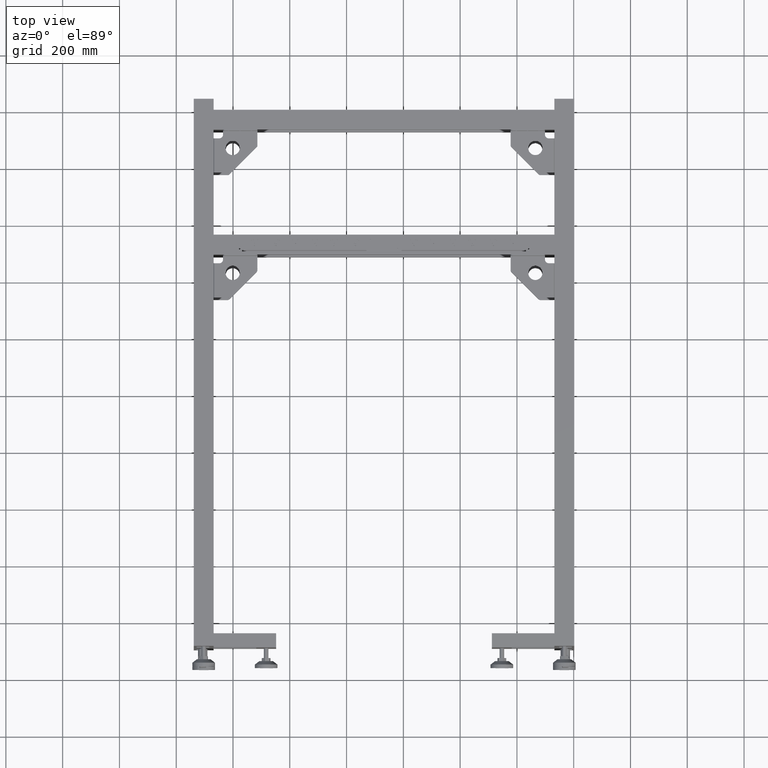
[diagram: clean part render]
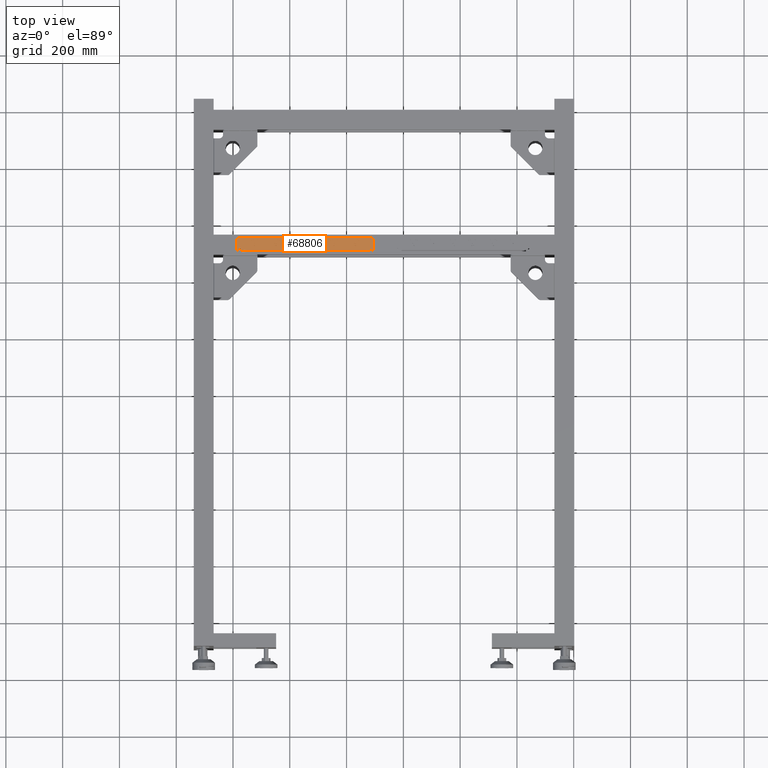
[diagram: same view with one face highlighted and labeled with its STEP entity id]
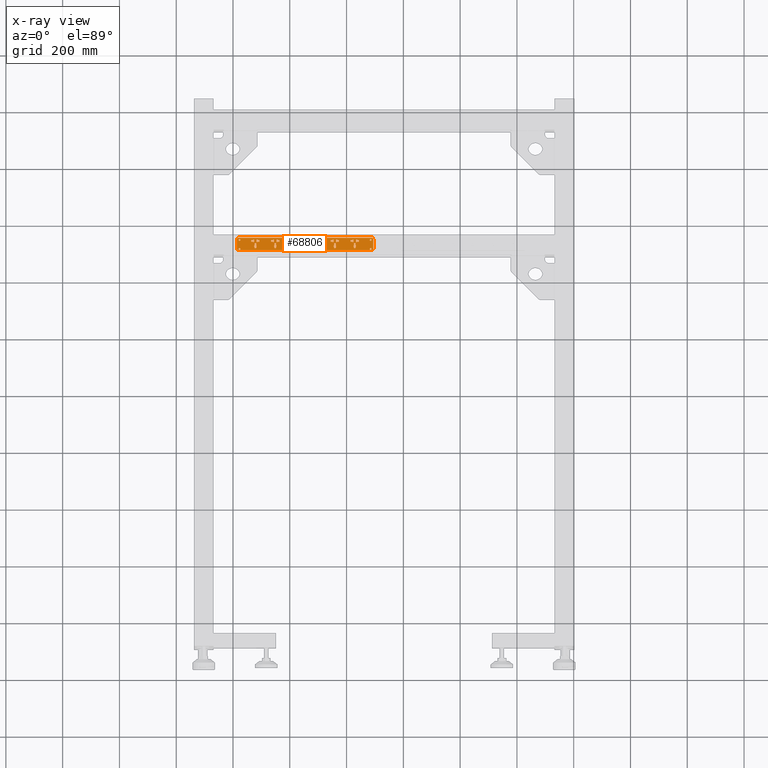
[diagram: x-ray of the same camera — body ghosted, the highlighted face saturated]
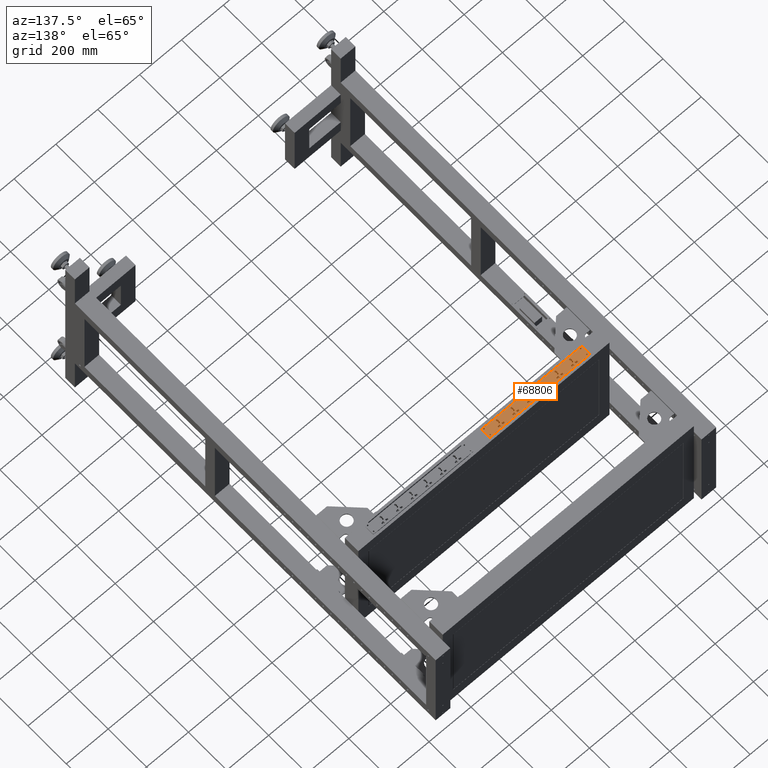
[diagram: same view with one face highlighted and labeled with its STEP entity id]
A machine part, top view. The second image highlights one B-rep face of the part: STEP entity #68806.
The next image is the same camera in x-ray: the body ghosted, the highlighted face saturated — about 0% of this face is hidden behind the body in this view.
A second angle (auxiliary view) of the same face is appended — the face is thin or edge-on in the first view.
In plain terms, the highlighted planar face has unit normal (0, -0, 1).
Its self-contained STEP definition (entity closure, byte-faithful):
#11 = CIRCLE ( 'NONE', #26014, 4.249999999999976019 ) ;
#62 = CARTESIAN_POINT ( 'NONE',  ( -1125.672487437185737, 530.4410804020112664, 302.0000000000000568 ) ) ;
#131 = CARTESIAN_POINT ( 'NONE',  ( -896.6724874371857368, 531.9410804020144496, 302.0000000000000568 ) ) ;
#141 = DIRECTION ( 'NONE',  ( 0.000000000000000000, -2.999999999999999839E-15, 1.000000000000000000 ) ) ;
#142 = VECTOR ( 'NONE', #65904, 1000.000000000000000 ) ;
#173 = CARTESIAN_POINT ( 'NONE',  ( -1119.840004715315672, 520.4767946877257145, 302.0000000000000000 ) ) ;
#194 = VERTEX_POINT ( 'NONE', #19652 ) ;
#201 = DIRECTION ( 'NONE',  ( 0.000000000000000000, 1.000000000000000000, 0.000000000000000000 ) ) ;
#210 = DIRECTION ( 'NONE',  ( -1.000000000000000000, -1.400000000000000030E-14, -4.199999999999999789E-29 ) ) ;
#237 = VERTEX_POINT ( 'NONE', #27335 ) ;
#247 = VERTEX_POINT ( 'NONE', #33442 ) ;
#294 = CARTESIAN_POINT ( 'NONE',  ( -826.6724874371858505, 537.9410804020154728, 302.0000000000000568 ) ) ;
#356 = EDGE_CURVE ( 'NONE', #25703, #29975, #53341, .T. ) ;
#395 = CARTESIAN_POINT ( 'NONE',  ( -903.6724874371858505, 538.1910804020144496, 302.0000000000000568 ) ) ;
#442 = LINE ( 'NONE', #75975, #43717 ) ;
#566 = CARTESIAN_POINT ( 'NONE',  ( -981.1724874371855094, 516.4410804020133128, 302.0000000000000000 ) ) ;
#624 = ORIENTED_EDGE ( 'NONE', *, *, #23537, .T. ) ;
#852 = CARTESIAN_POINT ( 'NONE',  ( -918.6724874371858505, 538.1910804020142223, 302.0000000000000568 ) ) ;
#873 = CARTESIAN_POINT ( 'NONE',  ( -903.6724874371858505, 539.4410804020144496, 302.0000000000000568 ) ) ;
#883 = EDGE_CURVE ( 'NONE', #9637, #47787, #62823, .T. ) ;
#912 = LINE ( 'NONE', #67948, #72941 ) ;
#920 = CIRCLE ( 'NONE', #68368, 3.249999999999975131 ) ;
#1062 = CARTESIAN_POINT ( 'NONE',  ( -908.1724874371855094, 513.4306817573161652, 302.0000000000000000 ) ) ;
#1122 = EDGE_CURVE ( 'NONE', #39479, #33798, #40442, .T. ) ;
#1158 = EDGE_CURVE ( 'NONE', #46308, #49803, #60118, .T. ) ;
#1232 = DIRECTION ( 'NONE',  ( 0.000000000000000000, -2.999999999999999839E-15, 1.000000000000000000 ) ) ;
#1372 = AXIS2_PLACEMENT_3D ( 'NONE', #65953, #4197, #53787 ) ;
#1401 = ORIENTED_EDGE ( 'NONE', *, *, #66503, .F. ) ;
#1411 = CARTESIAN_POINT ( 'NONE',  ( -918.6724874371858505, 539.4410804020142223, 302.0000000000000568 ) ) ;
#1523 = EDGE_CURVE ( 'NONE', #43070, #43889, #66702, .T. ) ;
#1528 = CARTESIAN_POINT ( 'NONE',  ( -1177.172487437185737, 534.9410804020105843, 302.0000000000000568 ) ) ;
#1598 = VERTEX_POINT ( 'NONE', #30964 ) ;
#1604 = DIRECTION ( 'NONE',  ( -1.000000000000000000, -1.400000000000000030E-14, -4.199999999999999789E-29 ) ) ;
#1755 = ORIENTED_EDGE ( 'NONE', *, *, #69590, .F. ) ;
#1773 = ORIENTED_EDGE ( 'NONE', *, *, #9016, .F. ) ;
#1838 = CARTESIAN_POINT ( 'NONE',  ( -766.6724874371857368, 530.4410804020162686, 302.0000000000000568 ) ) ;
#1854 = CARTESIAN_POINT ( 'NONE',  ( -1121.172487437185737, 523.4410804020112664, 302.0000000000000000 ) ) ;
#1906 = DIRECTION ( 'NONE',  ( 1.400000000000000030E-14, -1.000000000000000000, -2.999999999999999839E-15 ) ) ;
#2028 = CARTESIAN_POINT ( 'NONE',  ( -848.6724874371858505, 539.4410804020151318, 302.0000000000000568 ) ) ;
#2117 = CARTESIAN_POINT ( 'NONE',  ( -1058.672487437185737, 531.6910804020122896, 302.0000000000000568 ) ) ;
#2197 = CARTESIAN_POINT ( 'NONE',  ( -988.6724874371857368, 530.4410804020131991, 302.0000000000000568 ) ) ;
#2208 = CIRCLE ( 'NONE', #43672, 3.000000000000002665 ) ;
#2224 = DIRECTION ( 'NONE',  ( 1.400000000000000030E-14, -1.000000000000000000, -2.999999999999999839E-15 ) ) ;
#2228 = CARTESIAN_POINT ( 'NONE',  ( -903.6724874371857368, 531.6910804020144496, 302.0000000000000568 ) ) ;
#2248 = CARTESIAN_POINT ( 'NONE',  ( -1116.672487437185737, 530.4410804020113801, 302.0000000000000568 ) ) ;
#2394 = LINE ( 'NONE', #27180, #2974 ) ;
#2482 = CARTESIAN_POINT ( 'NONE',  ( -903.6724874371857368, 530.4410804020144496, 302.0000000000000568 ) ) ;
#2597 = CARTESIAN_POINT ( 'NONE',  ( -1113.672487437185964, 538.1910804020114938, 302.0000000000000568 ) ) ;
#2606 = VERTEX_POINT ( 'NONE', #41133 ) ;
#2827 = VERTEX_POINT ( 'NONE', #54944 ) ;
#2938 = CARTESIAN_POINT ( 'NONE',  ( -838.1724874371853957, 509.4410804020153023, 302.0000000000000000 ) ) ;
#2974 = VECTOR ( 'NONE', #70638, 1000.000000000000000 ) ;
#3124 = DIRECTION ( 'NONE',  ( 0.000000000000000000, -2.999999999999999839E-15, 1.000000000000000000 ) ) ;
#3125 = CIRCLE ( 'NONE', #78319, 4.249999999999976019 ) ;
#3449 = ORIENTED_EDGE ( 'NONE', *, *, #65476, .F. ) ;
#3545 = DIRECTION ( 'NONE',  ( -1.400000000000000030E-14, 1.000000000000000000, 2.999999999999999839E-15 ) ) ;
#3655 = LINE ( 'NONE', #34129, #17787 ) ;
#3697 = PLANE ( 'NONE',  #38632 ) ;
#3771 = CARTESIAN_POINT ( 'NONE',  ( -966.6724874371858505, 531.9410804020135402, 302.0000000000000568 ) ) ;
#3934 = CARTESIAN_POINT ( 'NONE',  ( -768.1724874371855094, 509.4410804020163255, 302.0000000000000000 ) ) ;
#4016 = EDGE_CURVE ( 'NONE', #13019, #20890, #8511, .T. ) ;
#4071 = VERTEX_POINT ( 'NONE', #35289 ) ;
#4132 = ORIENTED_EDGE ( 'NONE', *, *, #20124, .F. ) ;
#4190 = DIRECTION ( 'NONE',  ( -2.220446049250311188E-14, 1.000000000000000000, 0.000000000000000000 ) ) ;
#4197 = DIRECTION ( 'NONE',  ( 0.000000000000000000, -2.999999999999999839E-15, 1.000000000000000000 ) ) ;
#4226 = FACE_BOUND ( 'NONE', #44540, .T. ) ;
#4239 = EDGE_LOOP ( 'NONE', ( #52630, #68253, #65130, #56740, #5907, #71957, #70146, #15669 ) ) ;
#4259 = ORIENTED_EDGE ( 'NONE', *, *, #39057, .F. ) ;
#4278 = EDGE_CURVE ( 'NONE', #7652, #42165, #6013, .T. ) ;
#4296 = VERTEX_POINT ( 'NONE', #24716 ) ;
#4304 = DIRECTION ( 'NONE',  ( 1.000000000000000000, 1.400000000000000030E-14, 4.199999999999999789E-29 ) ) ;
#4312 = ORIENTED_EDGE ( 'NONE', *, *, #56699, .F. ) ;
#4359 = CARTESIAN_POINT ( 'NONE',  ( -908.1724874371855094, 509.4410804020143928, 302.0000000000000000 ) ) ;
#4617 = FACE_BOUND ( 'NONE', #78031, .T. ) ;
#4657 = ORIENTED_EDGE ( 'NONE', *, *, #22496, .F. ) ;
#4675 = CARTESIAN_POINT ( 'NONE',  ( -1128.672487437185737, 539.4410804020113801, 302.0000000000000568 ) ) ;
#4685 = VECTOR ( 'NONE', #44693, 1000.000000000000000 ) ;
#4796 = ORIENTED_EDGE ( 'NONE', *, *, #77504, .F. ) ;
#4934 = EDGE_CURVE ( 'NONE', #29975, #21200, #5317, .T. ) ;
#5002 = ORIENTED_EDGE ( 'NONE', *, *, #16439, .F. ) ;
#5021 = FACE_BOUND ( 'NONE', #76541, .T. ) ;
#5048 = CARTESIAN_POINT ( 'NONE',  ( -1128.672487437185737, 538.1910804020112664, 302.0000000000000568 ) ) ;
#5094 = CARTESIAN_POINT ( 'NONE',  ( -1036.672487437185737, 531.9410804020126307, 302.0000000000000568 ) ) ;
#5126 = VERTEX_POINT ( 'NONE', #22317 ) ;
#5233 = DIRECTION ( 'NONE',  ( 1.400000000000000030E-14, -1.000000000000000000, -2.999999999999999839E-15 ) ) ;
#5264 = ORIENTED_EDGE ( 'NONE', *, *, #32766, .F. ) ;
#5307 = CARTESIAN_POINT ( 'NONE',  ( -1058.672487437185737, 530.4410804020122896, 302.0000000000000568 ) ) ;
#5317 = LINE ( 'NONE', #60985, #38766 ) ;
#5364 = CARTESIAN_POINT ( 'NONE',  ( -995.6724874371857368, 531.9410804020130854, 302.0000000000000568 ) ) ;
#5389 = VECTOR ( 'NONE', #35226, 1000.000000000000000 ) ;
#5435 = LINE ( 'NONE', #67998, #19859 ) ;
#5440 = DIRECTION ( 'NONE',  ( 1.400000000000000030E-14, -1.000000000000000000, -2.999999999999999839E-15 ) ) ;
#5448 = VERTEX_POINT ( 'NONE', #25139 ) ;
#5555 = VECTOR ( 'NONE', #66885, 1000.000000000000000 ) ;
#5583 = VERTEX_POINT ( 'NONE', #77879 ) ;
#5584 = DIRECTION ( 'NONE',  ( -0.9993628543475501225, 0.03569153051239834507, 1.070745915371950126E-16 ) ) ;
#5616 = CARTESIAN_POINT ( 'NONE',  ( -836.6724874371858505, 530.4410804020154728, 302.0000000000000568 ) ) ;
#5637 = LINE ( 'NONE', #23931, #9469 ) ;
#5655 = EDGE_CURVE ( 'NONE', #72513, #6744, #16530, .T. ) ;
#5742 = VECTOR ( 'NONE', #15789, 1000.000000000000000 ) ;
#5868 = LINE ( 'NONE', #30653, #48058 ) ;
#5907 = ORIENTED_EDGE ( 'NONE', *, *, #40725, .F. ) ;
#5921 = CARTESIAN_POINT ( 'NONE',  ( -984.1724874371855094, 513.4306817573152557, 302.0000000000000000 ) ) ;
#5984 = EDGE_CURVE ( 'NONE', #55860, #48388, #58710, .T. ) ;
#6013 = LINE ( 'NONE', #30807, #59418 ) ;
#6028 = LINE ( 'NONE', #10922, #76012 ) ;
#6100 = LINE ( 'NONE', #43468, #48753 ) ;
#6150 = CARTESIAN_POINT ( 'NONE',  ( -1118.172487437185509, 509.4410804020114369, 302.0000000000000000 ) ) ;
#6217 = DIRECTION ( 'NONE',  ( 1.400000000000000030E-14, -1.000000000000000000, -2.999999999999999839E-15 ) ) ;
#6240 = CARTESIAN_POINT ( 'NONE',  ( -1177.172487437185737, 537.9410804020105843, 302.0000000000000568 ) ) ;
#6258 = EDGE_CURVE ( 'NONE', #23784, #31722, #67111, .T. ) ;
#6297 = LINE ( 'NONE', #37983, #72201 ) ;
#6342 = CARTESIAN_POINT ( 'NONE',  ( -1048.172487437185509, 513.4306817573142325, 302.0000000000000000 ) ) ;
#6522 = ORIENTED_EDGE ( 'NONE', *, *, #21156, .F. ) ;
#6558 = LINE ( 'NONE', #13047, #69093 ) ;
#6610 = EDGE_CURVE ( 'NONE', #12601, #24133, #62914, .T. ) ;
#6613 = ORIENTED_EDGE ( 'NONE', *, *, #28763, .F. ) ;
#6744 = VERTEX_POINT ( 'NONE', #39338 ) ;
#7053 = CARTESIAN_POINT ( 'NONE',  ( -1051.172487437185737, 526.6910804020124033, 302.0000000000000568 ) ) ;
#7081 = DIRECTION ( 'NONE',  ( 1.400000000000000030E-14, -1.000000000000000000, -2.999999999999999839E-15 ) ) ;
#7247 = DIRECTION ( 'NONE',  ( 0.9993628543475501225, -0.03569153051239824792, -1.070745915371947291E-16 ) ) ;
#7276 = EDGE_CURVE ( 'NONE', #41277, #54889, #61105, .T. ) ;
#7301 = VECTOR ( 'NONE', #3545, 1000.000000000000000 ) ;
#7312 = VERTEX_POINT ( 'NONE', #79381 ) ;
#7341 = CARTESIAN_POINT ( 'NONE',  ( -1177.172487437185737, 537.9410804020105843, 302.0000000000000568 ) ) ;
#7391 = EDGE_CURVE ( 'NONE', #54889, #5448, #3125, .T. ) ;
#7452 = ORIENTED_EDGE ( 'NONE', *, *, #21999, .F. ) ;
#7455 = VERTEX_POINT ( 'NONE', #13154 ) ;
#7495 = EDGE_CURVE ( 'NONE', #15922, #74979, #43301, .T. ) ;
#7603 = VERTEX_POINT ( 'NONE', #35778 ) ;
#7652 = VERTEX_POINT ( 'NONE', #62758 ) ;
#7722 = CARTESIAN_POINT ( 'NONE',  ( -988.6724874371857368, 530.4410804020131991, 302.0000000000000568 ) ) ;
#7759 = CARTESIAN_POINT ( 'NONE',  ( -1181.172487437185282, 501.4410804020105275, 301.9999999999999432 ) ) ;
#7860 = DIRECTION ( 'NONE',  ( 0.000000000000000000, 1.000000000000000000, 0.000000000000000000 ) ) ;
#7939 = ORIENTED_EDGE ( 'NONE', *, *, #52970, .F. ) ;
#7965 = VECTOR ( 'NONE', #13830, 1000.000000000000000 ) ;
#8056 = CARTESIAN_POINT ( 'NONE',  ( -908.1724874371855094, 509.4410804020143928, 302.0000000000000000 ) ) ;
#8158 = CARTESIAN_POINT ( 'NONE',  ( -988.6724874371858505, 538.1910804020131991, 302.0000000000000568 ) ) ;
#8290 = VECTOR ( 'NONE', #10357, 1000.000000000000000 ) ;
#8310 = DIRECTION ( 'NONE',  ( 1.400000000000000030E-14, -1.000000000000000000, -2.999999999999999839E-15 ) ) ;
#8497 = VERTEX_POINT ( 'NONE', #50696 ) ;
#8503 = ORIENTED_EDGE ( 'NONE', *, *, #71882, .F. ) ;
#8511 = LINE ( 'NONE', #77557, #34714 ) ;
#8612 = CARTESIAN_POINT ( 'NONE',  ( -763.6724874371858505, 538.1910804020163823, 302.0000000000000568 ) ) ;
#8699 = DIRECTION ( 'NONE',  ( 0.000000000000000000, -1.000000000000000000, 0.000000000000000000 ) ) ;
#8737 = VERTEX_POINT ( 'NONE', #53491 ) ;
#8870 = VECTOR ( 'NONE', #70992, 1000.000000000000000 ) ;
#8915 = AXIS2_PLACEMENT_3D ( 'NONE', #11632, #36410, #22624 ) ;
#9016 = EDGE_CURVE ( 'NONE', #76503, #12601, #33492, .T. ) ;
#9147 = VERTEX_POINT ( 'NONE', #9511 ) ;
#9192 = EDGE_CURVE ( 'NONE', #9780, #63897, #40289, .T. ) ;
#9258 = LINE ( 'NONE', #71791, #53606 ) ;
#9331 = VERTEX_POINT ( 'NONE', #30185 ) ;
#9397 = EDGE_CURVE ( 'NONE', #21707, #72513, #45597, .T. ) ;
#9465 = DIRECTION ( 'NONE',  ( -1.000000000000000000, -1.400000000000000030E-14, -4.199999999999999789E-29 ) ) ;
#9469 = VECTOR ( 'NONE', #5233, 1000.000000000000000 ) ;
#9489 = VERTEX_POINT ( 'NONE', #11003 ) ;
#9505 = DIRECTION ( 'NONE',  ( -2.612289469706265384E-14, 1.000000000000000000, 0.000000000000000000 ) ) ;
#9511 = CARTESIAN_POINT ( 'NONE',  ( -833.6724874371858505, 531.6910804020153591, 302.0000000000000568 ) ) ;
#9571 = ORIENTED_EDGE ( 'NONE', *, *, #53948, .F. ) ;
#9637 = VERTEX_POINT ( 'NONE', #55298 ) ;
#9695 = EDGE_CURVE ( 'NONE', #79201, #42145, #36180, .T. ) ;
#9780 = VERTEX_POINT ( 'NONE', #32108 ) ;
#9897 = DIRECTION ( 'NONE',  ( 0.000000000000000000, -2.999999999999999839E-15, 1.000000000000000000 ) ) ;
#9953 = LINE ( 'NONE', #46948, #45728 ) ;
#9963 = CIRCLE ( 'NONE', #41090, 3.000000000000002665 ) ;
#10083 = VECTOR ( 'NONE', #73868, 1000.000000000000000 ) ;
#10261 = CARTESIAN_POINT ( 'NONE',  ( -715.1724874371858505, 537.9410804020171781, 302.0000000000000568 ) ) ;
#10305 = VERTEX_POINT ( 'NONE', #10719 ) ;
#10357 = DIRECTION ( 'NONE',  ( 0.9993628543475490122, 0.03569153051242672514, 1.070745915372801603E-16 ) ) ;
#10365 = VECTOR ( 'NONE', #1604, 1000.000000000000000 ) ;
#10428 = CARTESIAN_POINT ( 'NONE',  ( -909.8400047153157857, 520.4767946877286704, 302.0000000000000000 ) ) ;
#10455 = ORIENTED_EDGE ( 'NONE', *, *, #77107, .F. ) ;
#10459 = AXIS2_PLACEMENT_3D ( 'NONE', #27329, #65105, #28925 ) ;
#10477 = EDGE_CURVE ( 'NONE', #78680, #66310, #56609, .T. ) ;
#10523 = ORIENTED_EDGE ( 'NONE', *, *, #66045, .F. ) ;
#10719 = CARTESIAN_POINT ( 'NONE',  ( -925.6724874371858505, 537.9410804020141086, 302.0000000000000568 ) ) ;
#10817 = DIRECTION ( 'NONE',  ( 0.000000000000000000, -2.999999999999999839E-15, 1.000000000000000000 ) ) ;
#10878 = CARTESIAN_POINT ( 'NONE',  ( -1113.672487437185964, 539.4410804020116075, 302.0000000000000568 ) ) ;
#10884 = CARTESIAN_POINT ( 'NONE',  ( -778.6724874371857368, 530.4410804020160413, 302.0000000000000568 ) ) ;
#10899 = VERTEX_POINT ( 'NONE', #12628 ) ;
#10922 = CARTESIAN_POINT ( 'NONE',  ( -833.6724874371858505, 531.6910804020153591, 302.0000000000000568 ) ) ;
#10944 = CARTESIAN_POINT ( 'NONE',  ( -848.6724874371858505, 539.4410804020151318, 302.0000000000000568 ) ) ;
#10968 = CIRCLE ( 'NONE', #22680, 5.000000000000004441 ) ;
#11000 = ORIENTED_EDGE ( 'NONE', *, *, #62798, .F. ) ;
#11003 = CARTESIAN_POINT ( 'NONE',  ( -839.8400047153157857, 520.4767946877295799, 302.0000000000000000 ) ) ;
#11023 = VERTEX_POINT ( 'NONE', #76772 ) ;
#11111 = ORIENTED_EDGE ( 'NONE', *, *, #7495, .T. ) ;
#11122 = CARTESIAN_POINT ( 'NONE',  ( -925.6724874371857368, 531.9410804020141086, 302.0000000000000568 ) ) ;
#11165 = ORIENTED_EDGE ( 'NONE', *, *, #55682, .F. ) ;
#11188 = CARTESIAN_POINT ( 'NONE',  ( -1124.172487437185509, 513.4306817573132093, 302.0000000000000000 ) ) ;
#11294 = ORIENTED_EDGE ( 'NONE', *, *, #6610, .F. ) ;
#11453 = CARTESIAN_POINT ( 'NONE',  ( -914.1724874371855094, 513.4306817573161652, 302.0000000000000000 ) ) ;
#11560 = CARTESIAN_POINT ( 'NONE',  ( -1043.672487437185964, 539.4410804020124033, 302.0000000000000568 ) ) ;
#11592 = VERTEX_POINT ( 'NONE', #53273 ) ;
#11632 = CARTESIAN_POINT ( 'NONE',  ( -1051.172487437185509, 516.4410804020122896, 302.0000000000000000 ) ) ;
#11636 = VECTOR ( 'NONE', #45046, 1000.000000000000000 ) ;
#11810 = VERTEX_POINT ( 'NONE', #64030 ) ;
#11898 = CIRCLE ( 'NONE', #15794, 4.249999999999976019 ) ;
#11944 = DIRECTION ( 'NONE',  ( -1.400000000000000030E-14, 1.000000000000000000, 2.999999999999999839E-15 ) ) ;
#12074 = CARTESIAN_POINT ( 'NONE',  ( -1043.672487437185964, 531.6910804020125170, 302.0000000000000568 ) ) ;
#12077 = VECTOR ( 'NONE', #30632, 1000.000000000000000 ) ;
#12084 = CARTESIAN_POINT ( 'NONE',  ( -918.6724874371857368, 530.4410804020142223, 302.0000000000000568 ) ) ;
#12140 = VERTEX_POINT ( 'NONE', #20077 ) ;
#12266 = CARTESIAN_POINT ( 'NONE',  ( -855.6724874371857368, 531.9410804020150181, 302.0000000000000568 ) ) ;
#12292 = DIRECTION ( 'NONE',  ( -1.400000000000000030E-14, 1.000000000000000000, 2.999999999999999839E-15 ) ) ;
#12419 = VECTOR ( 'NONE', #13964, 1000.000000000000000 ) ;
#12427 = CARTESIAN_POINT ( 'NONE',  ( -778.6724874371857368, 530.4410804020160413, 302.0000000000000568 ) ) ;
#12493 = ORIENTED_EDGE ( 'NONE', *, *, #51950, .F. ) ;
#12510 = ORIENTED_EDGE ( 'NONE', *, *, #42044, .F. ) ;
#12601 = VERTEX_POINT ( 'NONE', #57758 ) ;
#12628 = CARTESIAN_POINT ( 'NONE',  ( -826.6724874371858505, 537.9410804020154728, 302.0000000000000568 ) ) ;
#12893 = CARTESIAN_POINT ( 'NONE',  ( -715.1724874371858505, 534.9410804020170644, 302.0000000000000568 ) ) ;
#12931 = CARTESIAN_POINT ( 'NONE',  ( -778.6724874371857368, 531.6910804020161549, 302.0000000000000568 ) ) ;
#13019 = VERTEX_POINT ( 'NONE', #25596 ) ;
#13043 = CARTESIAN_POINT ( 'NONE',  ( -833.6724874371859642, 538.1910804020153591, 302.0000000000000568 ) ) ;
#13045 = CARTESIAN_POINT ( 'NONE',  ( -1128.672487437185737, 530.4410804020112664, 302.0000000000000568 ) ) ;
#13047 = CARTESIAN_POINT ( 'NONE',  ( -1124.172487437185509, 509.4410804020113233, 302.0000000000000000 ) ) ;
#13068 = ORIENTED_EDGE ( 'NONE', *, *, #43127, .F. ) ;
#13124 = EDGE_CURVE ( 'NONE', #48388, #58875, #2394, .T. ) ;
#13141 = ORIENTED_EDGE ( 'NONE', *, *, #15050, .F. ) ;
#13154 = CARTESIAN_POINT ( 'NONE',  ( -1121.172487437185737, 526.6910804020112664, 302.0000000000000568 ) ) ;
#13165 = LINE ( 'NONE', #56650, #40468 ) ;
#13411 = EDGE_CURVE ( 'NONE', #10899, #22210, #25094, .T. ) ;
#13424 = CARTESIAN_POINT ( 'NONE',  ( -774.1724874371856231, 513.4306817573182116, 302.0000000000000000 ) ) ;
#13605 = EDGE_LOOP ( 'NONE', ( #34943, #28005, #73580, #46033, #10455, #28399, #50247 ) ) ;
#13670 = LINE ( 'NONE', #12084, #56540 ) ;
#13776 = CIRCLE ( 'NONE', #21565, 3.249999999999975131 ) ;
#13820 = CARTESIAN_POINT ( 'NONE',  ( -833.6724874371859642, 538.1910804020153591, 302.0000000000000568 ) ) ;
#13830 = DIRECTION ( 'NONE',  ( 1.400000000000000030E-14, -1.000000000000000000, -2.999999999999999839E-15 ) ) ;
#13848 = DIRECTION ( 'NONE',  ( 0.000000000000000000, -2.999999999999999839E-15, 1.000000000000000000 ) ) ;
#13869 = VECTOR ( 'NONE', #53848, 1000.000000000000000 ) ;
#13887 = LINE ( 'NONE', #50902, #50738 ) ;
#13935 = VECTOR ( 'NONE', #75321, 1000.000000000000000 ) ;
#13949 = VECTOR ( 'NONE', #6217, 1000.000000000000000 ) ;
#13964 = DIRECTION ( 'NONE',  ( -1.400000000000000030E-14, 1.000000000000000000, 2.999999999999999839E-15 ) ) ;
#14030 = ORIENTED_EDGE ( 'NONE', *, *, #61749, .T. ) ;
#14059 = AXIS2_PLACEMENT_3D ( 'NONE', #7341, #1232, #19536 ) ;
#14204 = EDGE_LOOP ( 'NONE', ( #24698, #48515 ) ) ;
#14218 = EDGE_CURVE ( 'NONE', #64275, #28431, #33691, .T. ) ;
#14341 = VERTEX_POINT ( 'NONE', #29181 ) ;
#14411 = CIRCLE ( 'NONE', #24811, 3.249999999999975131 ) ;
#14463 = VERTEX_POINT ( 'NONE', #60865 ) ;
#14644 = DIRECTION ( 'NONE',  ( 0.000000000000000000, 1.000000000000000000, 0.000000000000000000 ) ) ;
#14664 = VECTOR ( 'NONE', #69402, 1000.000000000000000 ) ;
#14695 = CARTESIAN_POINT ( 'NONE',  ( -1181.172487437185964, 545.4410804020104706, 302.0000000000001137 ) ) ;
#14756 = DIRECTION ( 'NONE',  ( 0.000000000000000000, -2.999999999999999839E-15, 1.000000000000000000 ) ) ;
#14810 = ORIENTED_EDGE ( 'NONE', *, *, #71281, .F. ) ;
#14992 = LINE ( 'NONE', #75545, #4685 ) ;
#15030 = ORIENTED_EDGE ( 'NONE', *, *, #33870, .F. ) ;
#15050 = EDGE_CURVE ( 'NONE', #46312, #28733, #47261, .T. ) ;
#15252 = EDGE_CURVE ( 'NONE', #62305, #5583, #15292, .T. ) ;
#15292 = LINE ( 'NONE', #39673, #69855 ) ;
#15351 = CARTESIAN_POINT ( 'NONE',  ( -778.6724874371857368, 530.4410804020160413, 302.0000000000000568 ) ) ;
#15409 = CIRCLE ( 'NONE', #8915, 4.249999999999976019 ) ;
#15642 = VERTEX_POINT ( 'NONE', #27373 ) ;
#15669 = ORIENTED_EDGE ( 'NONE', *, *, #74336, .F. ) ;
#15789 = DIRECTION ( 'NONE',  ( 1.400000000000000030E-14, -1.000000000000000000, -2.999999999999999839E-15 ) ) ;
#15794 = AXIS2_PLACEMENT_3D ( 'NONE', #44941, #49848, #25451 ) ;
#15922 = VERTEX_POINT ( 'NONE', #14695 ) ;
#16024 = CARTESIAN_POINT ( 'NONE',  ( -1106.672487437185737, 537.9410804020114938, 302.0000000000000568 ) ) ;
#16112 = CARTESIAN_POINT ( 'NONE',  ( -1058.672487437185737, 530.4410804020122896, 302.0000000000000568 ) ) ;
#16439 = EDGE_CURVE ( 'NONE', #33798, #45655, #36784, .T. ) ;
#16530 = LINE ( 'NONE', #55108, #60687 ) ;
#16536 = DIRECTION ( 'NONE',  ( -0.9993628543475490122, -0.03569153051242682229, -1.070745915372804561E-16 ) ) ;
#16629 = CARTESIAN_POINT ( 'NONE',  ( -772.5049701590555742, 520.4767946877306031, 302.0000000000000000 ) ) ;
#16639 = VERTEX_POINT ( 'NONE', #20101 ) ;
#16712 = LINE ( 'NONE', #60166, #72232 ) ;
#16863 = LINE ( 'NONE', #68737, #47944 ) ;
#16995 = VERTEX_POINT ( 'NONE', #56593 ) ;
#17111 = CARTESIAN_POINT ( 'NONE',  ( -711.1724874371859642, 545.4410804020170644, 302.0000000000001137 ) ) ;
#17190 = CARTESIAN_POINT ( 'NONE',  ( -918.6724874371857368, 531.6910804020142223, 302.0000000000000568 ) ) ;
#17221 = EDGE_CURVE ( 'NONE', #58875, #79201, #39104, .T. ) ;
#17228 = ORIENTED_EDGE ( 'NONE', *, *, #76528, .T. ) ;
#17428 = LINE ( 'NONE', #60898, #23056 ) ;
#17459 = VECTOR ( 'NONE', #76551, 1000.000000000000000 ) ;
#17571 = VERTEX_POINT ( 'NONE', #45908 ) ;
#17607 = ORIENTED_EDGE ( 'NONE', *, *, #1523, .F. ) ;
#17787 = VECTOR ( 'NONE', #27631, 1000.000000000000000 ) ;
#17833 = DIRECTION ( 'NONE',  ( 0.000000000000000000, -2.999999999999999839E-15, 1.000000000000000000 ) ) ;
#17842 = VERTEX_POINT ( 'NONE', #5616 ) ;
#17844 = VERTEX_POINT ( 'NONE', #18217 ) ;
#17866 = CARTESIAN_POINT ( 'NONE',  ( -1118.172487437185509, 513.4306817573133230, 302.0000000000000000 ) ) ;
#17913 = DIRECTION ( 'NONE',  ( 1.400000000000000030E-14, -1.000000000000000000, -2.999999999999999839E-15 ) ) ;
#18102 = DIRECTION ( 'NONE',  ( -1.400000000000000030E-14, 1.000000000000000000, 2.999999999999999839E-15 ) ) ;
#18217 = CARTESIAN_POINT ( 'NONE',  ( -1113.672487437185964, 539.4410804020116075, 302.0000000000000568 ) ) ;
#18301 = CIRCLE ( 'NONE', #66316, 3.000000000000002665 ) ;
#18444 = CARTESIAN_POINT ( 'NONE',  ( -1051.172487437185509, 516.4410804020122896, 302.0000000000000000 ) ) ;
#18454 = DIRECTION ( 'NONE',  ( 0.000000000000000000, -2.999999999999999839E-15, 1.000000000000000000 ) ) ;
#18509 = VECTOR ( 'NONE', #61244, 1000.000000000000000 ) ;
#18579 = EDGE_CURVE ( 'NONE', #22210, #53113, #75583, .T. ) ;
#18734 = DIRECTION ( 'NONE',  ( -1.400000000000000030E-14, 1.000000000000000000, 2.999999999999999839E-15 ) ) ;
#18741 = AXIS2_PLACEMENT_3D ( 'NONE', #23559, #72705, #65035 ) ;
#18824 = EDGE_LOOP ( 'NONE', ( #10523, #32687, #71567, #11294, #1773, #23021, #74966 ) ) ;
#18926 = EDGE_CURVE ( 'NONE', #30716, #41701, #27273, .T. ) ;
#18949 = CARTESIAN_POINT ( 'NONE',  ( -985.6724874371857368, 530.4410804020131991, 302.0000000000000568 ) ) ;
#18952 = CARTESIAN_POINT ( 'NONE',  ( -1135.672487437185964, 537.9410804020111527, 302.0000000000000568 ) ) ;
#18973 = VECTOR ( 'NONE', #69741, 1000.000000000000000 ) ;
#19026 = VECTOR ( 'NONE', #73638, 1000.000000000000000 ) ;
#19097 = DIRECTION ( 'NONE',  ( 1.400000000000000030E-14, -1.000000000000000000, -2.999999999999999839E-15 ) ) ;
#19152 = CARTESIAN_POINT ( 'NONE',  ( -833.6724874371857368, 530.4410804020154728, 302.0000000000000568 ) ) ;
#19153 = DIRECTION ( 'NONE',  ( 0.000000000000000000, -2.999999999999999839E-15, 1.000000000000000000 ) ) ;
#19182 = EDGE_CURVE ( 'NONE', #66310, #46649, #25710, .T. ) ;
#19266 = DIRECTION ( 'NONE',  ( 0.000000000000000000, 1.000000000000000000, 0.000000000000000000 ) ) ;
#19280 = EDGE_CURVE ( 'NONE', #51328, #22323, #13887, .T. ) ;
#19388 = VECTOR ( 'NONE', #47758, 1000.000000000000000 ) ;
#19392 = CARTESIAN_POINT ( 'NONE',  ( -706.1724874371853957, 501.4410804020171781, 301.9999999999999432 ) ) ;
#19470 = VERTEX_POINT ( 'NONE', #65464 ) ;
#19518 = VECTOR ( 'NONE', #78206, 1000.000000000000000 ) ;
#19536 = DIRECTION ( 'NONE',  ( 0.000000000000000000, -1.000000000000000000, 0.000000000000000000 ) ) ;
#19618 = CARTESIAN_POINT ( 'NONE',  ( -706.1724874371858505, 540.4410804020171781, 302.0000000000000568 ) ) ;
#19652 = CARTESIAN_POINT ( 'NONE',  ( -1054.172487437185509, 513.4306817573142325, 302.0000000000000000 ) ) ;
#19859 = VECTOR ( 'NONE', #11944, 1000.000000000000000 ) ;
#19941 = CARTESIAN_POINT ( 'NONE',  ( -1058.672487437185964, 538.1910804020122896, 302.0000000000000568 ) ) ;
#19944 = DIRECTION ( 'NONE',  ( 1.400000000000000030E-14, -1.000000000000000000, -2.999999999999999839E-15 ) ) ;
#20008 = DIRECTION ( 'NONE',  ( -1.400000000000000030E-14, 1.000000000000000000, 2.999999999999999839E-15 ) ) ;
#20077 = CARTESIAN_POINT ( 'NONE',  ( -1124.172487437185509, 509.4410804020113233, 302.0000000000000000 ) ) ;
#20101 = CARTESIAN_POINT ( 'NONE',  ( -1054.172487437185509, 509.4410804020122896, 302.0000000000000000 ) ) ;
#20124 = EDGE_CURVE ( 'NONE', #67288, #55035, #32303, .T. ) ;
#20150 = EDGE_CURVE ( 'NONE', #45769, #21619, #39563, .T. ) ;
#20246 = LINE ( 'NONE', #15351, #75704 ) ;
#20398 = DIRECTION ( 'NONE',  ( -0.9993628543475501225, 0.03569153051239834507, 1.070745915371950126E-16 ) ) ;
#20450 = ORIENTED_EDGE ( 'NONE', *, *, #30048, .F. ) ;
#20457 = LINE ( 'NONE', #50571, #13935 ) ;
#20478 = CARTESIAN_POINT ( 'NONE',  ( -1177.172487437185282, 505.9410804020105843, 301.9999999999999432 ) ) ;
#20605 = ORIENTED_EDGE ( 'NONE', *, *, #75743, .F. ) ;
#20811 = EDGE_LOOP ( 'NONE', ( #24412, #68066, #34160, #46100, #11000, #36333, #43587 ) ) ;
#20832 = VECTOR ( 'NONE', #56134, 1000.000000000000000 ) ;
#20890 = VERTEX_POINT ( 'NONE', #55699 ) ;
#20981 = CARTESIAN_POINT ( 'NONE',  ( -1048.172487437185509, 509.4410804020124033, 302.0000000000000000 ) ) ;
#21140 = DIRECTION ( 'NONE',  ( -2.612289469706265384E-14, 1.000000000000000000, 0.000000000000000000 ) ) ;
#21156 = EDGE_CURVE ( 'NONE', #9147, #51181, #6028, .T. ) ;
#21182 = CARTESIAN_POINT ( 'NONE',  ( -763.6724874371858505, 539.4410804020163823, 302.0000000000000568 ) ) ;
#21200 = VERTEX_POINT ( 'NONE', #73464 ) ;
#21239 = VECTOR ( 'NONE', #65163, 1000.000000000000000 ) ;
#21312 = ORIENTED_EDGE ( 'NONE', *, *, #29928, .F. ) ;
#21345 = VERTEX_POINT ( 'NONE', #1528 ) ;
#21455 = EDGE_CURVE ( 'NONE', #20890, #14463, #70578, .T. ) ;
#21521 = VECTOR ( 'NONE', #23905, 1000.000000000000000 ) ;
#21550 = DIRECTION ( 'NONE',  ( 0.000000000000000000, -2.999999999999999839E-15, 1.000000000000000000 ) ) ;
#21565 = AXIS2_PLACEMENT_3D ( 'NONE', #43667, #55877, #201 ) ;
#21611 = VECTOR ( 'NONE', #70670, 1000.000000000000000 ) ;
#21619 = VERTEX_POINT ( 'NONE', #10428 ) ;
#21707 = VERTEX_POINT ( 'NONE', #61995 ) ;
#21792 = LINE ( 'NONE', #20981, #46070 ) ;
#21833 = ORIENTED_EDGE ( 'NONE', *, *, #28692, .F. ) ;
#21872 = CARTESIAN_POINT ( 'NONE',  ( -1128.672487437185737, 530.4410804020112664, 302.0000000000000568 ) ) ;
#21893 = AXIS2_PLACEMENT_3D ( 'NONE', #50731, #25142, #74290 ) ;
#21996 = ORIENTED_EDGE ( 'NONE', *, *, #18579, .F. ) ;
#21999 = EDGE_CURVE ( 'NONE', #5126, #23784, #42704, .T. ) ;
#22045 = DIRECTION ( 'NONE',  ( 1.400000000000000030E-14, -1.000000000000000000, -2.999999999999999839E-15 ) ) ;
#22103 = VERTEX_POINT ( 'NONE', #43117 ) ;
#22200 = VERTEX_POINT ( 'NONE', #852 ) ;
#22210 = VERTEX_POINT ( 'NONE', #13043 ) ;
#22279 = DIRECTION ( 'NONE',  ( 1.400000000000000030E-14, -1.000000000000000000, -2.999999999999999839E-15 ) ) ;
#22290 = VECTOR ( 'NONE', #22045, 1000.000000000000000 ) ;
#22317 = CARTESIAN_POINT ( 'NONE',  ( -1118.172487437185509, 509.4410804020114369, 302.0000000000000000 ) ) ;
#22323 = VERTEX_POINT ( 'NONE', #65007 ) ;
#22346 = CARTESIAN_POINT ( 'NONE',  ( -911.1724874371856231, 516.4410804020143360, 302.0000000000000000 ) ) ;
#22440 = DIRECTION ( 'NONE',  ( 0.000000000000000000, 1.000000000000000000, 0.000000000000000000 ) ) ;
#22475 = CARTESIAN_POINT ( 'NONE',  ( -838.1724874371853957, 509.4410804020153023, 302.0000000000000000 ) ) ;
#22496 = EDGE_CURVE ( 'NONE', #21200, #24702, #79586, .T. ) ;
#22518 = FACE_BOUND ( 'NONE', #14204, .T. ) ;
#22542 = CARTESIAN_POINT ( 'NONE',  ( -771.1724874371857368, 523.4410804020161549, 302.0000000000000000 ) ) ;
#22554 = LINE ( 'NONE', #47360, #33778 ) ;
#22624 = DIRECTION ( 'NONE',  ( 0.000000000000000000, 1.000000000000000000, 0.000000000000000000 ) ) ;
#22628 = LINE ( 'NONE', #58415, #24977 ) ;
#22680 = AXIS2_PLACEMENT_3D ( 'NONE', #80105, #60612, #53748 ) ;
#22721 = DIRECTION ( 'NONE',  ( -2.612289469706265384E-14, 1.000000000000000000, 0.000000000000000000 ) ) ;
#22806 = CARTESIAN_POINT ( 'NONE',  ( -995.6724874371858505, 537.9410804020130854, 302.0000000000000568 ) ) ;
#22896 = VECTOR ( 'NONE', #68031, 1000.000000000000000 ) ;
#22961 = CIRCLE ( 'NONE', #72251, 3.000000000000002665 ) ;
#22962 = CARTESIAN_POINT ( 'NONE',  ( -966.6724874371858505, 537.9410804020135402, 302.0000000000000568 ) ) ;
#23021 = ORIENTED_EDGE ( 'NONE', *, *, #31177, .F. ) ;
#23022 = EDGE_CURVE ( 'NONE', #74169, #29185, #74808, .T. ) ;
#23056 = VECTOR ( 'NONE', #23527, 1000.000000000000000 ) ;
#23188 = CARTESIAN_POINT ( 'NONE',  ( -1181.172487437185737, 540.4410804020105843, 302.0000000000000568 ) ) ;
#23306 = FACE_BOUND ( 'NONE', #24325, .T. ) ;
#23388 = VECTOR ( 'NONE', #49323, 1000.000000000000000 ) ;
#23407 = EDGE_CURVE ( 'NONE', #47787, #43070, #31763, .T. ) ;
#23513 = DIRECTION ( 'NONE',  ( 0.9993628543475490122, 0.03569153051242672514, 1.070745915372801603E-16 ) ) ;
#23527 = DIRECTION ( 'NONE',  ( 1.400000000000000030E-14, -1.000000000000000000, -2.999999999999999839E-15 ) ) ;
#23537 = EDGE_CURVE ( 'NONE', #66405, #36208, #58043, .T. ) ;
#23559 = CARTESIAN_POINT ( 'NONE',  ( -771.1724874371856231, 516.4410804020162686, 302.0000000000000000 ) ) ;
#23716 = FACE_BOUND ( 'NONE', #34807, .T. ) ;
#23784 = VERTEX_POINT ( 'NONE', #17866 ) ;
#23905 = DIRECTION ( 'NONE',  ( 1.400000000000000030E-14, -1.000000000000000000, -2.999999999999999839E-15 ) ) ;
#23931 = CARTESIAN_POINT ( 'NONE',  ( -984.1724874371853957, 509.4410804020133128, 302.0000000000000000 ) ) ;
#23961 = AXIS2_PLACEMENT_3D ( 'NONE', #66460, #10817, #54294 ) ;
#24000 = DIRECTION ( 'NONE',  ( 0.000000000000000000, 1.000000000000000000, 0.000000000000000000 ) ) ;
#24062 = VECTOR ( 'NONE', #58862, 1000.000000000000000 ) ;
#24133 = VERTEX_POINT ( 'NONE', #4359 ) ;
#24170 = CARTESIAN_POINT ( 'NONE',  ( -1135.672487437185737, 531.9410804020111527, 302.0000000000000568 ) ) ;
#24324 = CARTESIAN_POINT ( 'NONE',  ( -908.1724874371855094, 509.4410804020143928, 302.0000000000000000 ) ) ;
#24325 = EDGE_LOOP ( 'NONE', ( #7939, #9571 ) ) ;
#24375 = DIRECTION ( 'NONE',  ( 1.000000000000000000, 1.400000000000000030E-14, 4.199999999999999789E-29 ) ) ;
#24394 = ORIENTED_EDGE ( 'NONE', *, *, #23022, .F. ) ;
#24412 = ORIENTED_EDGE ( 'NONE', *, *, #71600, .F. ) ;
#24525 = CARTESIAN_POINT ( 'NONE',  ( -1106.672487437185737, 531.9410804020114938, 302.0000000000000568 ) ) ;
#24595 = DIRECTION ( 'NONE',  ( -1.000000000000000000, -1.400000000000000030E-14, -4.199999999999999789E-29 ) ) ;
#24684 = AXIS2_PLACEMENT_3D ( 'NONE', #62113, #57227, #55635 ) ;
#24694 = CARTESIAN_POINT ( 'NONE',  ( -988.6724874371857368, 531.6910804020131991, 302.0000000000000568 ) ) ;
#24698 = ORIENTED_EDGE ( 'NONE', *, *, #43636, .F. ) ;
#24702 = VERTEX_POINT ( 'NONE', #25279 ) ;
#24716 = CARTESIAN_POINT ( 'NONE',  ( -1113.672487437185737, 530.4410804020113801, 302.0000000000000568 ) ) ;
#24778 = CARTESIAN_POINT ( 'NONE',  ( -706.1724874371859642, 545.4410804020170644, 302.0000000000001137 ) ) ;
#24790 = VECTOR ( 'NONE', #20398, 1000.000000000000000 ) ;
#24811 = AXIS2_PLACEMENT_3D ( 'NONE', #25269, #49259, #25667 ) ;
#24821 = VERTEX_POINT ( 'NONE', #69929 ) ;
#24837 = DIRECTION ( 'NONE',  ( -1.400000000000000030E-14, 1.000000000000000000, 2.999999999999999839E-15 ) ) ;
#24903 = EDGE_CURVE ( 'NONE', #14463, #28547, #32997, .T. ) ;
#24977 = VECTOR ( 'NONE', #16536, 1000.000000000000000 ) ;
#25094 = LINE ( 'NONE', #294, #37517 ) ;
#25139 = CARTESIAN_POINT ( 'NONE',  ( -1049.840004715315899, 520.4767946877266240, 302.0000000000000000 ) ) ;
#25142 = DIRECTION ( 'NONE',  ( 0.000000000000000000, -2.999999999999999839E-15, 1.000000000000000000 ) ) ;
#25192 = LINE ( 'NONE', #36969, #30374 ) ;
#25202 = ORIENTED_EDGE ( 'NONE', *, *, #31555, .F. ) ;
#25259 = VECTOR ( 'NONE', #40689, 1000.000000000000000 ) ;
#25269 = CARTESIAN_POINT ( 'NONE',  ( -771.1724874371857368, 523.4410804020161549, 302.0000000000000000 ) ) ;
#25279 = CARTESIAN_POINT ( 'NONE',  ( -973.6724874371857368, 530.4410804020134265, 302.0000000000000568 ) ) ;
#25296 = DIRECTION ( 'NONE',  ( 0.000000000000000000, -1.000000000000000000, 0.000000000000000000 ) ) ;
#25451 = DIRECTION ( 'NONE',  ( 0.000000000000000000, 1.000000000000000000, 0.000000000000000000 ) ) ;
#25484 = VECTOR ( 'NONE', #18102, 1000.000000000000000 ) ;
#25596 = CARTESIAN_POINT ( 'NONE',  ( -774.1724874371855094, 509.4410804020162118, 302.0000000000000000 ) ) ;
#25667 = DIRECTION ( 'NONE',  ( 0.000000000000000000, 1.000000000000000000, 0.000000000000000000 ) ) ;
#25703 = VERTEX_POINT ( 'NONE', #77426 ) ;
#25710 = LINE ( 'NONE', #69956, #24790 ) ;
#25722 = VERTEX_POINT ( 'NONE', #70936 ) ;
#25761 = CARTESIAN_POINT ( 'NONE',  ( -1113.672487437185737, 531.6910804020113801, 302.0000000000000568 ) ) ;
#25972 = EDGE_CURVE ( 'NONE', #24702, #37430, #63934, .T. ) ;
#26014 = AXIS2_PLACEMENT_3D ( 'NONE', #38922, #35516, #59096 ) ;
#26229 = CARTESIAN_POINT ( 'NONE',  ( -706.1724874371853957, 501.4410804020171781, 301.9999999999999432 ) ) ;
#26242 = LINE ( 'NONE', #63991, #45404 ) ;
#26453 = EDGE_CURVE ( 'NONE', #46649, #80335, #37876, .T. ) ;
#26463 = CARTESIAN_POINT ( 'NONE',  ( -711.1724874371853957, 506.4410804020171781, 301.9999999999999432 ) ) ;
#26490 = EDGE_CURVE ( 'NONE', #17844, #70880, #47478, .T. ) ;
#26553 = CARTESIAN_POINT ( 'NONE',  ( -981.1724874371856231, 523.4410804020133128, 302.0000000000000000 ) ) ;
#26734 = VECTOR ( 'NONE', #57559, 1000.000000000000000 ) ;
#26790 = CARTESIAN_POINT ( 'NONE',  ( -1128.672487437185737, 539.4410804020113801, 302.0000000000000568 ) ) ;
#26821 = LINE ( 'NONE', #2028, #75017 ) ;
#26904 = DIRECTION ( 'NONE',  ( 0.9993628543475501225, -0.03569153051239824792, -1.070745915371947291E-16 ) ) ;
#26929 = CARTESIAN_POINT ( 'NONE',  ( -833.6724874371859642, 539.4410804020153591, 302.0000000000000568 ) ) ;
#26963 = VECTOR ( 'NONE', #4304, 1000.000000000000000 ) ;
#27016 = DIRECTION ( 'NONE',  ( -1.400000000000000030E-14, 1.000000000000000000, 2.999999999999999839E-15 ) ) ;
#27063 = ORIENTED_EDGE ( 'NONE', *, *, #31917, .F. ) ;
#27180 = CARTESIAN_POINT ( 'NONE',  ( -1065.672487437185964, 531.9410804020121759, 302.0000000000000568 ) ) ;
#27182 = CARTESIAN_POINT ( 'NONE',  ( -763.6724874371857368, 530.4410804020162686, 302.0000000000000568 ) ) ;
#27233 = ORIENTED_EDGE ( 'NONE', *, *, #78778, .F. ) ;
#27247 = VERTEX_POINT ( 'NONE', #24170 ) ;
#27273 = CIRCLE ( 'NONE', #77906, 4.249999999999976019 ) ;
#27285 = CIRCLE ( 'NONE', #24684, 3.000000000000002665 ) ;
#27329 = CARTESIAN_POINT ( 'NONE',  ( -715.1724874371858505, 537.9410804020171781, 302.0000000000000568 ) ) ;
#27335 = CARTESIAN_POINT ( 'NONE',  ( -1128.672487437185737, 530.4410804020112664, 302.0000000000000568 ) ) ;
#27365 = VERTEX_POINT ( 'NONE', #32176 ) ;
#27373 = CARTESIAN_POINT ( 'NONE',  ( -973.6724874371858505, 538.1910804020133128, 302.0000000000000568 ) ) ;
#27631 = DIRECTION ( 'NONE',  ( -0.9993628543475501225, 0.03569153051239834507, 1.070745915371950126E-16 ) ) ;
#27676 = CARTESIAN_POINT ( 'NONE',  ( -1036.672487437185737, 531.9410804020126307, 302.0000000000000568 ) ) ;
#27832 = ORIENTED_EDGE ( 'NONE', *, *, #63230, .F. ) ;
#28005 = ORIENTED_EDGE ( 'NONE', *, *, #7391, .F. ) ;
#28087 = EDGE_CURVE ( 'NONE', #7455, #68657, #60493, .T. ) ;
#28137 = EDGE_LOOP ( 'NONE', ( #11165, #24394 ) ) ;
#28145 = EDGE_CURVE ( 'NONE', #10305, #68755, #51076, .T. ) ;
#28179 = LINE ( 'NONE', #2197, #46310 ) ;
#28335 = ORIENTED_EDGE ( 'NONE', *, *, #59712, .F. ) ;
#28359 = ORIENTED_EDGE ( 'NONE', *, *, #33525, .F. ) ;
#28399 = ORIENTED_EDGE ( 'NONE', *, *, #69716, .F. ) ;
#28431 = VERTEX_POINT ( 'NONE', #4675 ) ;
#28521 = VECTOR ( 'NONE', #59021, 1000.000000000000000 ) ;
#28539 = ORIENTED_EDGE ( 'NONE', *, *, #59444, .F. ) ;
#28547 = VERTEX_POINT ( 'NONE', #38777 ) ;
#28611 = CARTESIAN_POINT ( 'NONE',  ( -1052.504970159055574, 520.4767946877266240, 302.0000000000000000 ) ) ;
#28692 = EDGE_CURVE ( 'NONE', #11023, #9637, #28179, .T. ) ;
#28733 = VERTEX_POINT ( 'NONE', #77728 ) ;
#28742 = CARTESIAN_POINT ( 'NONE',  ( -1116.672487437185737, 539.4410804020114938, 302.0000000000000568 ) ) ;
#28763 = EDGE_CURVE ( 'NONE', #34413, #58516, #2208, .T. ) ;
#28804 = DIRECTION ( 'NONE',  ( -0.9993628543475490122, -0.03569153051242682229, -1.070745915372804561E-16 ) ) ;
#28925 = DIRECTION ( 'NONE',  ( 0.000000000000000000, 1.000000000000000000, 0.000000000000000000 ) ) ;
#28975 = ORIENTED_EDGE ( 'NONE', *, *, #13411, .F. ) ;
#29008 = FACE_BOUND ( 'NONE', #13605, .T. ) ;
#29053 = EDGE_CURVE ( 'NONE', #9489, #22103, #33427, .T. ) ;
#29152 = VECTOR ( 'NONE', #2224, 1000.000000000000000 ) ;
#29157 = CIRCLE ( 'NONE', #23961, 3.249999999999975131 ) ;
#29181 = CARTESIAN_POINT ( 'NONE',  ( -836.6724874371859642, 539.4410804020153591, 302.0000000000000568 ) ) ;
#29185 = VERTEX_POINT ( 'NONE', #58165 ) ;
#29235 = VECTOR ( 'NONE', #51254, 1000.000000000000000 ) ;
#29325 = CARTESIAN_POINT ( 'NONE',  ( -988.6724874371858505, 538.1910804020131991, 302.0000000000000568 ) ) ;
#29369 = VERTEX_POINT ( 'NONE', #12893 ) ;
#29405 = FACE_BOUND ( 'NONE', #70535, .T. ) ;
#29507 = ORIENTED_EDGE ( 'NONE', *, *, #68087, .F. ) ;
#29778 = DIRECTION ( 'NONE',  ( -1.000000000000000000, -1.400000000000000030E-14, -4.199999999999999789E-29 ) ) ;
#29821 = VECTOR ( 'NONE', #26904, 1000.000000000000000 ) ;
#29836 = EDGE_CURVE ( 'NONE', #53113, #14341, #50998, .T. ) ;
#29928 = EDGE_CURVE ( 'NONE', #71833, #62514, #72039, .T. ) ;
#29951 = VECTOR ( 'NONE', #73602, 1000.000000000000000 ) ;
#29975 = VERTEX_POINT ( 'NONE', #30591 ) ;
#30048 = EDGE_CURVE ( 'NONE', #11810, #40028, #42772, .T. ) ;
#30092 = VERTEX_POINT ( 'NONE', #32601 ) ;
#30104 = VECTOR ( 'NONE', #22279, 1000.000000000000000 ) ;
#30185 = CARTESIAN_POINT ( 'NONE',  ( -903.6724874371857368, 530.4410804020144496, 302.0000000000000568 ) ) ;
#30374 = VECTOR ( 'NONE', #32080, 1000.000000000000000 ) ;
#30466 = LINE ( 'NONE', #30873, #69838 ) ;
#30591 = CARTESIAN_POINT ( 'NONE',  ( -976.6724874371859642, 539.4410804020133128, 302.0000000000000568 ) ) ;
#30623 = LINE ( 'NONE', #78565, #63871 ) ;
#30632 = DIRECTION ( 'NONE',  ( -1.400000000000000030E-14, 1.000000000000000000, 2.999999999999999839E-15 ) ) ;
#30642 = ORIENTED_EDGE ( 'NONE', *, *, #48881, .F. ) ;
#30653 = CARTESIAN_POINT ( 'NONE',  ( -836.6724874371858505, 530.4410804020154728, 302.0000000000000568 ) ) ;
#30716 = VERTEX_POINT ( 'NONE', #73000 ) ;
#30735 = VECTOR ( 'NONE', #47285, 1000.000000000000000 ) ;
#30807 = CARTESIAN_POINT ( 'NONE',  ( -756.6724874371857368, 531.9410804020164960, 302.0000000000000568 ) ) ;
#30827 = LINE ( 'NONE', #12931, #41368 ) ;
#30873 = CARTESIAN_POINT ( 'NONE',  ( -1055.672487437185964, 530.4410804020122896, 302.0000000000000568 ) ) ;
#30898 = ORIENTED_EDGE ( 'NONE', *, *, #54283, .F. ) ;
#30964 = CARTESIAN_POINT ( 'NONE',  ( -982.5049701590554605, 520.4767946877275335, 302.0000000000000000 ) ) ;
#30971 = VERTEX_POINT ( 'NONE', #80096 ) ;
#31177 = EDGE_CURVE ( 'NONE', #63897, #76503, #41130, .T. ) ;
#31193 = ORIENTED_EDGE ( 'NONE', *, *, #37123, .F. ) ;
#31298 = LINE ( 'NONE', #50000, #55243 ) ;
#31555 = EDGE_CURVE ( 'NONE', #28431, #69897, #40836, .T. ) ;
#31590 = CARTESIAN_POINT ( 'NONE',  ( -903.6724874371858505, 539.4410804020144496, 302.0000000000000568 ) ) ;
#31722 = VERTEX_POINT ( 'NONE', #173 ) ;
#31737 = VERTEX_POINT ( 'NONE', #68829 ) ;
#31763 = LINE ( 'NONE', #56549, #41094 ) ;
#31807 = EDGE_CURVE ( 'NONE', #1598, #79243, #74945, .T. ) ;
#31917 = EDGE_CURVE ( 'NONE', #7312, #11810, #20457, .T. ) ;
#31959 = VECTOR ( 'NONE', #27016, 1000.000000000000000 ) ;
#32080 = DIRECTION ( 'NONE',  ( -1.400000000000000030E-14, 1.000000000000000000, 2.999999999999999839E-15 ) ) ;
#32108 = CARTESIAN_POINT ( 'NONE',  ( -911.1724874371857368, 526.6910804020143360, 302.0000000000000568 ) ) ;
#32129 = ORIENTED_EDGE ( 'NONE', *, *, #57438, .F. ) ;
#32176 = CARTESIAN_POINT ( 'NONE',  ( -1135.672487437185964, 537.9410804020111527, 302.0000000000000568 ) ) ;
#32303 = LINE ( 'NONE', #44903, #29152 ) ;
#32558 = ORIENTED_EDGE ( 'NONE', *, *, #50777, .F. ) ;
#32601 = CARTESIAN_POINT ( 'NONE',  ( -988.6724874371857368, 531.6910804020131991, 302.0000000000000568 ) ) ;
#32687 = ORIENTED_EDGE ( 'NONE', *, *, #20150, .F. ) ;
#32766 = EDGE_CURVE ( 'NONE', #12140, #5126, #38167, .T. ) ;
#32817 = CARTESIAN_POINT ( 'NONE',  ( -1051.172487437185737, 523.4410804020124033, 302.0000000000000000 ) ) ;
#32961 = CIRCLE ( 'NONE', #77024, 3.249999999999975131 ) ;
#32997 = CIRCLE ( 'NONE', #18741, 4.249999999999976019 ) ;
#33067 = CARTESIAN_POINT ( 'NONE',  ( -973.6724874371857368, 530.4410804020134265, 302.0000000000000568 ) ) ;
#33269 = LINE ( 'NONE', #70634, #24062 ) ;
#33324 = ORIENTED_EDGE ( 'NONE', *, *, #9695, .F. ) ;
#33427 = CIRCLE ( 'NONE', #54131, 3.249999999999975131 ) ;
#33432 = EDGE_CURVE ( 'NONE', #2606, #8737, #16863, .T. ) ;
#33442 = CARTESIAN_POINT ( 'NONE',  ( -918.6724874371857368, 530.4410804020142223, 302.0000000000000568 ) ) ;
#33492 = LINE ( 'NONE', #58274, #56149 ) ;
#33525 = EDGE_CURVE ( 'NONE', #7603, #15642, #54250, .T. ) ;
#33614 = DIRECTION ( 'NONE',  ( -1.400000000000000030E-14, 1.000000000000000000, 2.999999999999999839E-15 ) ) ;
#33674 = DIRECTION ( 'NONE',  ( -1.400000000000000030E-14, 1.000000000000000000, 2.999999999999999839E-15 ) ) ;
#33691 = LINE ( 'NONE', #26790, #10365 ) ;
#33778 = VECTOR ( 'NONE', #72498, 1000.000000000000000 ) ;
#33798 = VERTEX_POINT ( 'NONE', #27676 ) ;
#33870 = EDGE_CURVE ( 'NONE', #33891, #2827, #30466, .T. ) ;
#33891 = VERTEX_POINT ( 'NONE', #74733 ) ;
#33903 = DIRECTION ( 'NONE',  ( 0.000000000000000000, -2.999999999999999839E-15, 1.000000000000000000 ) ) ;
#33939 = CARTESIAN_POINT ( 'NONE',  ( -1177.172487437185282, 502.9410804020105843, 301.9999999999999432 ) ) ;
#34129 = CARTESIAN_POINT ( 'NONE',  ( -1036.672487437185964, 537.9410804020126307, 302.0000000000000568 ) ) ;
#34160 = ORIENTED_EDGE ( 'NONE', *, *, #78087, .F. ) ;
#34189 = DIRECTION ( 'NONE',  ( 0.000000000000000000, -2.999999999999999839E-15, 1.000000000000000000 ) ) ;
#34294 = ORIENTED_EDGE ( 'NONE', *, *, #50362, .F. ) ;
#34413 = VERTEX_POINT ( 'NONE', #33939 ) ;
#34487 = ORIENTED_EDGE ( 'NONE', *, *, #50221, .F. ) ;
#34497 = DIRECTION ( 'NONE',  ( 1.400000000000000030E-14, -1.000000000000000000, -2.999999999999999839E-15 ) ) ;
#34714 = VECTOR ( 'NONE', #71463, 1000.000000000000000 ) ;
#34717 = FACE_BOUND ( 'NONE', #18824, .T. ) ;
#34736 = DIRECTION ( 'NONE',  ( -0.9993628543475501225, 0.03569153051239834507, 1.070745915371950126E-16 ) ) ;
#34807 = EDGE_LOOP ( 'NONE', ( #54503, #61443, #15030, #35815, #33324, #41273, #52313, #60517 ) ) ;
#34828 = VERTEX_POINT ( 'NONE', #38368 ) ;
#34943 = ORIENTED_EDGE ( 'NONE', *, *, #48660, .F. ) ;
#35021 = VERTEX_POINT ( 'NONE', #59832 ) ;
#35078 = DIRECTION ( 'NONE',  ( 0.000000000000000000, -2.999999999999999839E-15, 1.000000000000000000 ) ) ;
#35112 = FACE_OUTER_BOUND ( 'NONE', #37802, .T. ) ;
#35226 = DIRECTION ( 'NONE',  ( -1.400000000000000030E-14, 1.000000000000000000, 2.999999999999999839E-15 ) ) ;
#35289 = CARTESIAN_POINT ( 'NONE',  ( -1128.672487437185737, 531.6910804020111527, 302.0000000000000568 ) ) ;
#35307 = EDGE_CURVE ( 'NONE', #72159, #9331, #57355, .T. ) ;
#35452 = DIRECTION ( 'NONE',  ( 1.400000000000000030E-14, -1.000000000000000000, -2.999999999999999839E-15 ) ) ;
#35479 = ORIENTED_EDGE ( 'NONE', *, *, #19280, .F. ) ;
#35516 = DIRECTION ( 'NONE',  ( 0.000000000000000000, -2.999999999999999839E-15, 1.000000000000000000 ) ) ;
#35530 = EDGE_CURVE ( 'NONE', #37871, #41663, #67025, .T. ) ;
#35598 = ORIENTED_EDGE ( 'NONE', *, *, #70619, .F. ) ;
#35607 = ORIENTED_EDGE ( 'NONE', *, *, #74926, .F. ) ;
#35615 = CARTESIAN_POINT ( 'NONE',  ( -1113.672487437185737, 531.6910804020113801, 302.0000000000000568 ) ) ;
#35693 = LINE ( 'NONE', #71869, #53989 ) ;
#35723 = LINE ( 'NONE', #67805, #28521 ) ;
#35766 = CARTESIAN_POINT ( 'NONE',  ( -1054.172487437185509, 509.4410804020122896, 302.0000000000000000 ) ) ;
#35778 = CARTESIAN_POINT ( 'NONE',  ( -966.6724874371858505, 537.9410804020135402, 302.0000000000000568 ) ) ;
#35815 = ORIENTED_EDGE ( 'NONE', *, *, #67123, .F. ) ;
#36030 = DIRECTION ( 'NONE',  ( 0.000000000000000000, -2.999999999999999839E-15, 1.000000000000000000 ) ) ;
#36180 = LINE ( 'NONE', #5307, #70143 ) ;
#36189 = EDGE_LOOP ( 'NONE', ( #52221, #4796, #72380, #39247, #58782, #47534, #27832, #73847 ) ) ;
#36208 = VERTEX_POINT ( 'NONE', #71630 ) ;
#36330 = CARTESIAN_POINT ( 'NONE',  ( -918.6724874371857368, 531.6910804020142223, 302.0000000000000568 ) ) ;
#36333 = ORIENTED_EDGE ( 'NONE', *, *, #31807, .F. ) ;
#36410 = DIRECTION ( 'NONE',  ( 0.000000000000000000, -2.999999999999999839E-15, 1.000000000000000000 ) ) ;
#36465 = LINE ( 'NONE', #24694, #18509 ) ;
#36640 = ORIENTED_EDGE ( 'NONE', *, *, #46776, .F. ) ;
#36662 = CIRCLE ( 'NONE', #37965, 3.249999999999975131 ) ;
#36784 = LINE ( 'NONE', #5094, #56992 ) ;
#36969 = CARTESIAN_POINT ( 'NONE',  ( -915.6724874371857368, 530.4410804020143360, 302.0000000000000568 ) ) ;
#36994 = VECTOR ( 'NONE', #46283, 1000.000000000000000 ) ;
#37079 = DIRECTION ( 'NONE',  ( 0.000000000000000000, -2.999999999999999839E-15, 1.000000000000000000 ) ) ;
#37101 = ORIENTED_EDGE ( 'NONE', *, *, #54143, .F. ) ;
#37123 = EDGE_CURVE ( 'NONE', #34828, #54883, #65754, .T. ) ;
#37322 = AXIS2_PLACEMENT_3D ( 'NONE', #566, #18454, #74115 ) ;
#37364 = EDGE_CURVE ( 'NONE', #28733, #30092, #36465, .T. ) ;
#37396 = VERTEX_POINT ( 'NONE', #52286 ) ;
#37430 = VERTEX_POINT ( 'NONE', #62857 ) ;
#37432 = DIRECTION ( 'NONE',  ( -1.400000000000000030E-14, 1.000000000000000000, 2.999999999999999839E-15 ) ) ;
#37439 = EDGE_CURVE ( 'NONE', #63743, #66405, #63653, .T. ) ;
#37517 = VECTOR ( 'NONE', #5584, 1000.000000000000000 ) ;
#37764 = EDGE_CURVE ( 'NONE', #25722, #8497, #912, .T. ) ;
#37802 = EDGE_LOOP ( 'NONE', ( #4259, #11111, #65612, #17228, #42608, #624, #14030, #63418 ) ) ;
#37871 = VERTEX_POINT ( 'NONE', #8612 ) ;
#37876 = LINE ( 'NONE', #69137, #51419 ) ;
#37965 = AXIS2_PLACEMENT_3D ( 'NONE', #32817, #76276, #51126 ) ;
#37983 = CARTESIAN_POINT ( 'NONE',  ( -763.6724874371858505, 539.4410804020163823, 302.0000000000000568 ) ) ;
#38082 = DIRECTION ( 'NONE',  ( 1.400000000000000030E-14, -1.000000000000000000, -2.999999999999999839E-15 ) ) ;
#38167 = LINE ( 'NONE', #38569, #59456 ) ;
#38306 = LINE ( 'NONE', #56200, #13949 ) ;
#38355 = EDGE_CURVE ( 'NONE', #31737, #58200, #47901, .T. ) ;
#38368 = CARTESIAN_POINT ( 'NONE',  ( -778.6724874371857368, 531.6910804020161549, 302.0000000000000568 ) ) ;
#38534 = ORIENTED_EDGE ( 'NONE', *, *, #5655, .F. ) ;
#38569 = CARTESIAN_POINT ( 'NONE',  ( -1118.172487437185509, 509.4410804020114369, 302.0000000000000000 ) ) ;
#38594 = ORIENTED_EDGE ( 'NONE', *, *, #61717, .F. ) ;
#38632 = AXIS2_PLACEMENT_3D ( 'NONE', #46387, #53280, #39877 ) ;
#38726 = VERTEX_POINT ( 'NONE', #12266 ) ;
#38766 = VECTOR ( 'NONE', #48820, 1000.000000000000000 ) ;
#38777 = CARTESIAN_POINT ( 'NONE',  ( -769.8400047153155583, 520.4767946877306031, 302.0000000000000000 ) ) ;
#38794 = EDGE_LOOP ( 'NONE', ( #78257, #51389, #7452, #5264, #28335, #43897, #61795 ) ) ;
#38813 = ORIENTED_EDGE ( 'NONE', *, *, #10477, .F. ) ;
#38833 = ORIENTED_EDGE ( 'NONE', *, *, #1158, .F. ) ;
#38922 = CARTESIAN_POINT ( 'NONE',  ( -841.1724874371855094, 516.4410804020153591, 302.0000000000000000 ) ) ;
#38985 = ORIENTED_EDGE ( 'NONE', *, *, #356, .F. ) ;
#39027 = VECTOR ( 'NONE', #5440, 1000.000000000000000 ) ;
#39057 = EDGE_CURVE ( 'NONE', #15922, #58360, #44266, .T. ) ;
#39104 = LINE ( 'NONE', #2117, #29821 ) ;
#39176 = DIRECTION ( 'NONE',  ( 0.000000000000000000, -2.999999999999999839E-15, 1.000000000000000000 ) ) ;
#39247 = ORIENTED_EDGE ( 'NONE', *, *, #57437, .F. ) ;
#39338 = CARTESIAN_POINT ( 'NONE',  ( -1046.672487437185964, 539.4410804020124033, 302.0000000000000568 ) ) ;
#39479 = VERTEX_POINT ( 'NONE', #12074 ) ;
#39488 = DIRECTION ( 'NONE',  ( 0.000000000000000000, 1.000000000000000000, 0.000000000000000000 ) ) ;
#39545 = EDGE_LOOP ( 'NONE', ( #12510, #37101, #1401, #21312, #14810, #47790, #27233, #35479 ) ) ;
#39563 = CIRCLE ( 'NONE', #49962, 4.249999999999976019 ) ;
#39673 = CARTESIAN_POINT ( 'NONE',  ( -838.1724874371853957, 509.4410804020153023, 302.0000000000000000 ) ) ;
#39877 = DIRECTION ( 'NONE',  ( -1.000000000000000000, -1.400000000000000030E-14, -4.199999999999999789E-29 ) ) ;
#40028 = VERTEX_POINT ( 'NONE', #58558 ) ;
#40289 = CIRCLE ( 'NONE', #1372, 3.249999999999975131 ) ;
#40329 = CARTESIAN_POINT ( 'NONE',  ( -848.6724874371858505, 531.6910804020151318, 302.0000000000000568 ) ) ;
#40341 = EDGE_CURVE ( 'NONE', #35021, #30971, #25192, .T. ) ;
#40396 = EDGE_CURVE ( 'NONE', #4071, #237, #71040, .T. ) ;
#40442 = LINE ( 'NONE', #53840, #8290 ) ;
#40468 = VECTOR ( 'NONE', #62338, 1000.000000000000000 ) ;
#40578 = LINE ( 'NONE', #52380, #36994 ) ;
#40689 = DIRECTION ( 'NONE',  ( -1.000000000000000000, -1.400000000000000030E-14, -4.199999999999999789E-29 ) ) ;
#40725 = EDGE_CURVE ( 'NONE', #64890, #247, #13670, .T. ) ;
#40781 = VECTOR ( 'NONE', #29778, 1000.000000000000000 ) ;
#40836 = LINE ( 'NONE', #5048, #13869 ) ;
#40902 = LINE ( 'NONE', #59580, #41975 ) ;
#40909 = ORIENTED_EDGE ( 'NONE', *, *, #24903, .F. ) ;
#40984 = CARTESIAN_POINT ( 'NONE',  ( -855.6724874371857368, 531.9410804020150181, 302.0000000000000568 ) ) ;
#41090 = AXIS2_PLACEMENT_3D ( 'NONE', #6240, #141, #49731 ) ;
#41094 = VECTOR ( 'NONE', #73199, 1000.000000000000000 ) ;
#41130 = CIRCLE ( 'NONE', #60619, 4.249999999999976019 ) ;
#41133 = CARTESIAN_POINT ( 'NONE',  ( -1046.672487437185737, 530.4410804020124033, 302.0000000000000568 ) ) ;
#41193 = FACE_BOUND ( 'NONE', #36189, .T. ) ;
#41273 = ORIENTED_EDGE ( 'NONE', *, *, #17221, .F. ) ;
#41277 = VERTEX_POINT ( 'NONE', #45273 ) ;
#41355 = CARTESIAN_POINT ( 'NONE',  ( -715.1724874371858505, 540.9410804020171781, 302.0000000000000568 ) ) ;
#41368 = VECTOR ( 'NONE', #7247, 1000.000000000000000 ) ;
#41452 = EDGE_CURVE ( 'NONE', #67942, #58360, #68746, .T. ) ;
#41611 = DIRECTION ( 'NONE',  ( -1.400000000000000030E-14, 1.000000000000000000, 2.999999999999999839E-15 ) ) ;
#41663 = VERTEX_POINT ( 'NONE', #21182 ) ;
#41701 = VERTEX_POINT ( 'NONE', #52090 ) ;
#41968 = CARTESIAN_POINT ( 'NONE',  ( -842.5049701590555742, 520.4767946877295799, 302.0000000000000000 ) ) ;
#41975 = VECTOR ( 'NONE', #33614, 1000.000000000000000 ) ;
#42037 = VECTOR ( 'NONE', #52796, 1000.000000000000000 ) ;
#42044 = EDGE_CURVE ( 'NONE', #70584, #51328, #63665, .T. ) ;
#42070 = EDGE_LOOP ( 'NONE', ( #17607, #47994, #42092, #21833, #76124, #64443, #13141, #38594 ) ) ;
#42092 = ORIENTED_EDGE ( 'NONE', *, *, #883, .F. ) ;
#42097 = CARTESIAN_POINT ( 'NONE',  ( -981.1724874371856231, 526.6910804020133128, 302.0000000000000568 ) ) ;
#42145 = VERTEX_POINT ( 'NONE', #57982 ) ;
#42165 = VERTEX_POINT ( 'NONE', #58789 ) ;
#42219 = VECTOR ( 'NONE', #60255, 1000.000000000000000 ) ;
#42236 = DIRECTION ( 'NONE',  ( -1.400000000000000030E-14, 1.000000000000000000, 2.999999999999999839E-15 ) ) ;
#42237 = DIRECTION ( 'NONE',  ( -1.400000000000000030E-14, 1.000000000000000000, 2.999999999999999839E-15 ) ) ;
#42254 = DIRECTION ( 'NONE',  ( 1.400000000000000030E-14, -1.000000000000000000, -2.999999999999999839E-15 ) ) ;
#42584 = VECTOR ( 'NONE', #71292, 1000.000000000000000 ) ;
#42608 = ORIENTED_EDGE ( 'NONE', *, *, #37439, .T. ) ;
#42704 = LINE ( 'NONE', #6150, #50068 ) ;
#42772 = LINE ( 'NONE', #60659, #40781 ) ;
#43006 = CARTESIAN_POINT ( 'NONE',  ( -1065.672487437185964, 531.9410804020121759, 302.0000000000000568 ) ) ;
#43070 = VERTEX_POINT ( 'NONE', #44626 ) ;
#43117 = CARTESIAN_POINT ( 'NONE',  ( -841.1724874371857368, 526.6910804020152455, 302.0000000000000568 ) ) ;
#43127 = EDGE_CURVE ( 'NONE', #51758, #17571, #11, .T. ) ;
#43162 = CARTESIAN_POINT ( 'NONE',  ( -1177.172487437185282, 505.9410804020105843, 301.9999999999999432 ) ) ;
#43227 = CARTESIAN_POINT ( 'NONE',  ( -715.1724874371853957, 505.9410804020170076, 301.9999999999999432 ) ) ;
#43301 = CIRCLE ( 'NONE', #51158, 5.000000000000004441 ) ;
#43460 = VERTEX_POINT ( 'NONE', #7053 ) ;
#43468 = CARTESIAN_POINT ( 'NONE',  ( -1113.672487437185737, 530.4410804020113801, 302.0000000000000568 ) ) ;
#43578 = EDGE_CURVE ( 'NONE', #38726, #16995, #78086, .T. ) ;
#43587 = ORIENTED_EDGE ( 'NONE', *, *, #75658, .F. ) ;
#43593 = CARTESIAN_POINT ( 'NONE',  ( -785.6724874371857368, 531.9410804020160413, 302.0000000000000568 ) ) ;
#43636 = EDGE_CURVE ( 'NONE', #47022, #29369, #45498, .T. ) ;
#43667 = CARTESIAN_POINT ( 'NONE',  ( -911.1724874371856231, 523.4410804020143360, 302.0000000000000000 ) ) ;
#43672 = AXIS2_PLACEMENT_3D ( 'NONE', #20478, #39176, #8699 ) ;
#43717 = VECTOR ( 'NONE', #18734, 1000.000000000000000 ) ;
#43840 = EDGE_CURVE ( 'NONE', #237, #46814, #44338, .T. ) ;
#43885 = VERTEX_POINT ( 'NONE', #19152 ) ;
#43889 = VERTEX_POINT ( 'NONE', #8158 ) ;
#43894 = EDGE_CURVE ( 'NONE', #46234, #55860, #76381, .T. ) ;
#43897 = ORIENTED_EDGE ( 'NONE', *, *, #44676, .F. ) ;
#44001 = CARTESIAN_POINT ( 'NONE',  ( -896.6724874371857368, 531.9410804020144496, 302.0000000000000568 ) ) ;
#44038 = ORIENTED_EDGE ( 'NONE', *, *, #44561, .F. ) ;
#44144 = DIRECTION ( 'NONE',  ( -1.400000000000000030E-14, 1.000000000000000000, 2.999999999999999839E-15 ) ) ;
#44163 = VECTOR ( 'NONE', #24837, 1000.000000000000000 ) ;
#44180 = CIRCLE ( 'NONE', #49422, 3.249999999999975131 ) ;
#44266 = LINE ( 'NONE', #24778, #48381 ) ;
#44338 = LINE ( 'NONE', #13045, #20832 ) ;
#44540 = EDGE_LOOP ( 'NONE', ( #4657, #52168, #38985, #1755, #28359, #35607, #35598, #73094 ) ) ;
#44561 = EDGE_CURVE ( 'NONE', #51181, #10899, #49049, .T. ) ;
#44581 = CARTESIAN_POINT ( 'NONE',  ( -925.6724874371857368, 531.9410804020141086, 302.0000000000000568 ) ) ;
#44626 = CARTESIAN_POINT ( 'NONE',  ( -988.6724874371858505, 539.4410804020131991, 302.0000000000000568 ) ) ;
#44676 = EDGE_CURVE ( 'NONE', #68657, #65952, #11898, .T. ) ;
#44693 = DIRECTION ( 'NONE',  ( 1.400000000000000030E-14, -1.000000000000000000, -2.999999999999999839E-15 ) ) ;
#44868 = EDGE_CURVE ( 'NONE', #42165, #37871, #9953, .T. ) ;
#44903 = CARTESIAN_POINT ( 'NONE',  ( -766.6724874371857368, 530.4410804020162686, 302.0000000000000568 ) ) ;
#44941 = CARTESIAN_POINT ( 'NONE',  ( -1121.172487437185509, 516.4410804020113801, 302.0000000000000000 ) ) ;
#44984 = LINE ( 'NONE', #69745, #26734 ) ;
#44999 = CARTESIAN_POINT ( 'NONE',  ( -826.6724874371858505, 531.9410804020154728, 302.0000000000000568 ) ) ;
#45045 = DIRECTION ( 'NONE',  ( 1.000000000000000000, 1.400000000000000030E-14, 4.199999999999999789E-29 ) ) ;
#45046 = DIRECTION ( 'NONE',  ( 0.9993628543475490122, 0.03569153051242672514, 1.070745915372801603E-16 ) ) ;
#45273 = CARTESIAN_POINT ( 'NONE',  ( -1048.172487437185509, 509.4410804020124033, 302.0000000000000000 ) ) ;
#45374 = DIRECTION ( 'NONE',  ( 0.000000000000000000, -2.999999999999999839E-15, 1.000000000000000000 ) ) ;
#45404 = VECTOR ( 'NONE', #76180, 1000.000000000000000 ) ;
#45498 = CIRCLE ( 'NONE', #10459, 3.000000000000002665 ) ;
#45515 = CIRCLE ( 'NONE', #72731, 3.249999999999975131 ) ;
#45539 = CARTESIAN_POINT ( 'NONE',  ( -1121.172487437185509, 516.4410804020113801, 302.0000000000000000 ) ) ;
#45597 = LINE ( 'NONE', #70767, #58445 ) ;
#45655 = VERTEX_POINT ( 'NONE', #79892 ) ;
#45728 = VECTOR ( 'NONE', #34736, 1000.000000000000000 ) ;
#45769 = VERTEX_POINT ( 'NONE', #1062 ) ;
#45908 = CARTESIAN_POINT ( 'NONE',  ( -844.1724874371855094, 513.4306817573170747, 302.0000000000000000 ) ) ;
#46033 = ORIENTED_EDGE ( 'NONE', *, *, #47279, .F. ) ;
#46070 = VECTOR ( 'NONE', #70545, 1000.000000000000000 ) ;
#46100 = ORIENTED_EDGE ( 'NONE', *, *, #63105, .F. ) ;
#46234 = VERTEX_POINT ( 'NONE', #52520 ) ;
#46283 = DIRECTION ( 'NONE',  ( 1.400000000000000030E-14, -1.000000000000000000, -2.999999999999999839E-15 ) ) ;
#46308 = VERTEX_POINT ( 'NONE', #48013 ) ;
#46310 = VECTOR ( 'NONE', #59450, 1000.000000000000000 ) ;
#46312 = VERTEX_POINT ( 'NONE', #22806 ) ;
#46383 = DIRECTION ( 'NONE',  ( 1.000000000000000000, 1.400000000000000030E-14, 4.199999999999999789E-29 ) ) ;
#46387 = CARTESIAN_POINT ( 'NONE',  ( -706.1724874371853957, 501.4410804020171781, 301.9999999999999432 ) ) ;
#46577 = AXIS2_PLACEMENT_3D ( 'NONE', #65795, #17833, #22721 ) ;
#46620 = CARTESIAN_POINT ( 'NONE',  ( -1065.672487437185964, 537.9410804020121759, 302.0000000000000568 ) ) ;
#46649 = VERTEX_POINT ( 'NONE', #395 ) ;
#46689 = EDGE_CURVE ( 'NONE', #51461, #22200, #74745, .T. ) ;
#46695 = LINE ( 'NONE', #27182, #42037 ) ;
#46776 = EDGE_CURVE ( 'NONE', #55035, #25722, #46695, .T. ) ;
#46814 = VERTEX_POINT ( 'NONE', #53191 ) ;
#46850 = CARTESIAN_POINT ( 'NONE',  ( -1177.172487437185964, 540.9410804020106980, 302.0000000000000568 ) ) ;
#46914 = CARTESIAN_POINT ( 'NONE',  ( -911.1724874371856231, 516.4410804020143360, 302.0000000000000000 ) ) ;
#46948 = CARTESIAN_POINT ( 'NONE',  ( -756.6724874371858505, 537.9410804020164960, 302.0000000000000568 ) ) ;
#47022 = VERTEX_POINT ( 'NONE', #41355 ) ;
#47261 = LINE ( 'NONE', #5364, #80179 ) ;
#47279 = EDGE_CURVE ( 'NONE', #16639, #41277, #21792, .T. ) ;
#47285 = DIRECTION ( 'NONE',  ( 1.000000000000000000, 1.400000000000000030E-14, 4.199999999999999789E-29 ) ) ;
#47360 = CARTESIAN_POINT ( 'NONE',  ( -1135.672487437185737, 531.9410804020111527, 302.0000000000000568 ) ) ;
#47435 = ORIENTED_EDGE ( 'NONE', *, *, #40396, .F. ) ;
#47478 = LINE ( 'NONE', #10878, #54030 ) ;
#47534 = ORIENTED_EDGE ( 'NONE', *, *, #74831, .F. ) ;
#47720 = DIRECTION ( 'NONE',  ( 1.400000000000000030E-14, -1.000000000000000000, -2.999999999999999839E-15 ) ) ;
#47751 = ORIENTED_EDGE ( 'NONE', *, *, #70506, .F. ) ;
#47758 = DIRECTION ( 'NONE',  ( -0.9993628543475501225, 0.03569153051239834507, 1.070745915371950126E-16 ) ) ;
#47787 = VERTEX_POINT ( 'NONE', #66345 ) ;
#47790 = ORIENTED_EDGE ( 'NONE', *, *, #43578, .F. ) ;
#47793 = VECTOR ( 'NONE', #9465, 1000.000000000000000 ) ;
#47801 = EDGE_CURVE ( 'NONE', #68755, #64890, #48087, .T. ) ;
#47901 = LINE ( 'NONE', #65371, #54940 ) ;
#47920 = LINE ( 'NONE', #73064, #74204 ) ;
#47944 = VECTOR ( 'NONE', #60330, 1000.000000000000000 ) ;
#47994 = ORIENTED_EDGE ( 'NONE', *, *, #23407, .F. ) ;
#48013 = CARTESIAN_POINT ( 'NONE',  ( -771.1724874371857368, 526.6910804020162686, 302.0000000000000568 ) ) ;
#48058 = VECTOR ( 'NONE', #7081, 1000.000000000000000 ) ;
#48087 = LINE ( 'NONE', #17190, #42219 ) ;
#48115 = FACE_BOUND ( 'NONE', #66463, .T. ) ;
#48215 = DIRECTION ( 'NONE',  ( -1.000000000000000000, -1.400000000000000030E-14, -4.199999999999999789E-29 ) ) ;
#48230 = EDGE_CURVE ( 'NONE', #2827, #46234, #78841, .T. ) ;
#48341 = VECTOR ( 'NONE', #51489, 1000.000000000000000 ) ;
#48381 = VECTOR ( 'NONE', #24375, 1000.000000000000000 ) ;
#48388 = VERTEX_POINT ( 'NONE', #46620 ) ;
#48441 = VECTOR ( 'NONE', #44144, 1000.000000000000000 ) ;
#48515 = ORIENTED_EDGE ( 'NONE', *, *, #71773, .F. ) ;
#48522 = FACE_BOUND ( 'NONE', #42070, .T. ) ;
#48542 = CARTESIAN_POINT ( 'NONE',  ( -848.6724874371857368, 530.4410804020152455, 302.0000000000000568 ) ) ;
#48647 = DIRECTION ( 'NONE',  ( 0.000000000000000000, 1.000000000000000000, 0.000000000000000000 ) ) ;
#48660 = EDGE_CURVE ( 'NONE', #5448, #43460, #29157, .T. ) ;
#48753 = VECTOR ( 'NONE', #56485, 1000.000000000000000 ) ;
#48791 = DIRECTION ( 'NONE',  ( 1.400000000000000030E-14, -1.000000000000000000, -2.999999999999999839E-15 ) ) ;
#48820 = DIRECTION ( 'NONE',  ( 1.400000000000000030E-14, -1.000000000000000000, -2.999999999999999839E-15 ) ) ;
#48881 = EDGE_CURVE ( 'NONE', #24821, #78680, #57892, .T. ) ;
#49049 = LINE ( 'NONE', #60002, #5389 ) ;
#49129 = VERTEX_POINT ( 'NONE', #24525 ) ;
#49259 = DIRECTION ( 'NONE',  ( 0.000000000000000000, -2.999999999999999839E-15, 1.000000000000000000 ) ) ;
#49323 = DIRECTION ( 'NONE',  ( -1.400000000000000030E-14, 1.000000000000000000, 2.999999999999999839E-15 ) ) ;
#49422 = AXIS2_PLACEMENT_3D ( 'NONE', #26553, #14756, #7860 ) ;
#49731 = DIRECTION ( 'NONE',  ( 0.000000000000000000, -1.000000000000000000, 0.000000000000000000 ) ) ;
#49783 = LINE ( 'NONE', #62756, #22896 ) ;
#49803 = VERTEX_POINT ( 'NONE', #16629 ) ;
#49848 = DIRECTION ( 'NONE',  ( 0.000000000000000000, -2.999999999999999839E-15, 1.000000000000000000 ) ) ;
#49962 = AXIS2_PLACEMENT_3D ( 'NONE', #46914, #33903, #77754 ) ;
#49972 = DIRECTION ( 'NONE',  ( 1.000000000000000000, 1.400000000000000030E-14, 4.199999999999999789E-29 ) ) ;
#50000 = CARTESIAN_POINT ( 'NONE',  ( -778.6724874371858505, 538.1910804020162686, 302.0000000000000568 ) ) ;
#50068 = VECTOR ( 'NONE', #37432, 1000.000000000000000 ) ;
#50175 = AXIS2_PLACEMENT_3D ( 'NONE', #43227, #61110, #19266 ) ;
#50221 = EDGE_CURVE ( 'NONE', #19470, #31737, #49783, .T. ) ;
#50247 = ORIENTED_EDGE ( 'NONE', *, *, #74218, .F. ) ;
#50317 = ORIENTED_EDGE ( 'NONE', *, *, #62624, .F. ) ;
#50320 = DIRECTION ( 'NONE',  ( -1.400000000000000030E-14, 1.000000000000000000, 2.999999999999999839E-15 ) ) ;
#50362 = EDGE_CURVE ( 'NONE', #41663, #67288, #6297, .T. ) ;
#50482 = VERTEX_POINT ( 'NONE', #2597 ) ;
#50547 = VERTEX_POINT ( 'NONE', #72028 ) ;
#50571 = CARTESIAN_POINT ( 'NONE',  ( -775.6724874371857368, 530.4410804020161549, 302.0000000000000568 ) ) ;
#50696 = CARTESIAN_POINT ( 'NONE',  ( -763.6724874371857368, 531.6910804020162686, 302.0000000000000568 ) ) ;
#50731 = CARTESIAN_POINT ( 'NONE',  ( -771.1724874371856231, 516.4410804020162686, 302.0000000000000000 ) ) ;
#50738 = VECTOR ( 'NONE', #75655, 1000.000000000000000 ) ;
#50767 = ORIENTED_EDGE ( 'NONE', *, *, #43840, .F. ) ;
#50777 = EDGE_CURVE ( 'NONE', #58516, #34413, #22961, .T. ) ;
#50864 = DIRECTION ( 'NONE',  ( -2.220446049250311188E-14, 1.000000000000000000, 0.000000000000000000 ) ) ;
#50902 = CARTESIAN_POINT ( 'NONE',  ( -855.6724874371858505, 537.9410804020150181, 302.0000000000000568 ) ) ;
#50998 = LINE ( 'NONE', #56296, #64035 ) ;
#51076 = LINE ( 'NONE', #44581, #18973 ) ;
#51126 = DIRECTION ( 'NONE',  ( 0.000000000000000000, 1.000000000000000000, 0.000000000000000000 ) ) ;
#51142 = CARTESIAN_POINT ( 'NONE',  ( -973.6724874371858505, 531.6910804020134265, 302.0000000000000568 ) ) ;
#51158 = AXIS2_PLACEMENT_3D ( 'NONE', #23188, #54882, #24000 ) ;
#51181 = VERTEX_POINT ( 'NONE', #44999 ) ;
#51254 = DIRECTION ( 'NONE',  ( -1.000000000000000000, -1.400000000000000030E-14, -4.199999999999999789E-29 ) ) ;
#51328 = VERTEX_POINT ( 'NONE', #66055 ) ;
#51389 = ORIENTED_EDGE ( 'NONE', *, *, #6258, .F. ) ;
#51419 = VECTOR ( 'NONE', #33674, 1000.000000000000000 ) ;
#51461 = VERTEX_POINT ( 'NONE', #1411 ) ;
#51489 = DIRECTION ( 'NONE',  ( 1.000000000000000000, 1.400000000000000030E-14, 4.199999999999999789E-29 ) ) ;
#51504 = DIRECTION ( 'NONE',  ( 0.000000000000000000, 1.000000000000000000, 0.000000000000000000 ) ) ;
#51738 = CIRCLE ( 'NONE', #46577, 4.249999999999976019 ) ;
#51758 = VERTEX_POINT ( 'NONE', #41968 ) ;
#51846 = DIRECTION ( 'NONE',  ( 0.000000000000000000, 1.000000000000000000, 0.000000000000000000 ) ) ;
#51950 = EDGE_CURVE ( 'NONE', #6744, #2606, #38306, .T. ) ;
#52090 = CARTESIAN_POINT ( 'NONE',  ( -979.8400047153158994, 520.4767946877275335, 302.0000000000000000 ) ) ;
#52168 = ORIENTED_EDGE ( 'NONE', *, *, #4934, .F. ) ;
#52221 = ORIENTED_EDGE ( 'NONE', *, *, #65819, .F. ) ;
#52286 = CARTESIAN_POINT ( 'NONE',  ( -844.1724874371853957, 509.4410804020153023, 302.0000000000000000 ) ) ;
#52313 = ORIENTED_EDGE ( 'NONE', *, *, #13124, .F. ) ;
#52380 = CARTESIAN_POINT ( 'NONE',  ( -844.1724874371853957, 509.4410804020153023, 302.0000000000000000 ) ) ;
#52411 = EDGE_CURVE ( 'NONE', #30092, #11023, #63382, .T. ) ;
#52520 = CARTESIAN_POINT ( 'NONE',  ( -1058.672487437185964, 539.4410804020121759, 302.0000000000000568 ) ) ;
#52625 = CARTESIAN_POINT ( 'NONE',  ( -1122.504970159055802, 520.4767946877256009, 302.0000000000000000 ) ) ;
#52630 = ORIENTED_EDGE ( 'NONE', *, *, #46689, .F. ) ;
#52676 = VECTOR ( 'NONE', #61698, 1000.000000000000000 ) ;
#52796 = DIRECTION ( 'NONE',  ( 1.000000000000000000, 1.400000000000000030E-14, 4.199999999999999789E-29 ) ) ;
#52838 = DIRECTION ( 'NONE',  ( -1.000000000000000000, -1.400000000000000030E-14, -4.199999999999999789E-29 ) ) ;
#52914 = CARTESIAN_POINT ( 'NONE',  ( -1058.672487437185964, 539.4410804020121759, 302.0000000000000568 ) ) ;
#52970 = EDGE_CURVE ( 'NONE', #59388, #21345, #9963, .T. ) ;
#53113 = VERTEX_POINT ( 'NONE', #26929 ) ;
#53191 = CARTESIAN_POINT ( 'NONE',  ( -1125.672487437185737, 530.4410804020112664, 302.0000000000000568 ) ) ;
#53273 = CARTESIAN_POINT ( 'NONE',  ( -845.6724874371859642, 539.4410804020152455, 302.0000000000000568 ) ) ;
#53280 = DIRECTION ( 'NONE',  ( 0.000000000000000000, -2.999999999999999839E-15, 1.000000000000000000 ) ) ;
#53341 = LINE ( 'NONE', #60204, #47793 ) ;
#53350 = DIRECTION ( 'NONE',  ( 0.000000000000000000, -2.999999999999999839E-15, 1.000000000000000000 ) ) ;
#53387 = CARTESIAN_POINT ( 'NONE',  ( -896.6724874371858505, 537.9410804020144496, 302.0000000000000568 ) ) ;
#53429 = FACE_BOUND ( 'NONE', #74734, .T. ) ;
#53461 = CARTESIAN_POINT ( 'NONE',  ( -1113.672487437185964, 538.1910804020114938, 302.0000000000000568 ) ) ;
#53491 = CARTESIAN_POINT ( 'NONE',  ( -1043.672487437185964, 530.4410804020124033, 302.0000000000000568 ) ) ;
#53492 = ORIENTED_EDGE ( 'NONE', *, *, #66343, .F. ) ;
#53569 = EDGE_CURVE ( 'NONE', #80274, #13019, #17428, .T. ) ;
#53606 = VECTOR ( 'NONE', #64903, 1000.000000000000000 ) ;
#53748 = DIRECTION ( 'NONE',  ( 0.000000000000000000, 1.000000000000000000, 0.000000000000000000 ) ) ;
#53787 = DIRECTION ( 'NONE',  ( 0.000000000000000000, 1.000000000000000000, 0.000000000000000000 ) ) ;
#53840 = CARTESIAN_POINT ( 'NONE',  ( -1043.672487437185964, 531.6910804020125170, 302.0000000000000568 ) ) ;
#53848 = DIRECTION ( 'NONE',  ( 1.400000000000000030E-14, -1.000000000000000000, -2.999999999999999839E-15 ) ) ;
#53907 = VECTOR ( 'NONE', #62634, 1000.000000000000000 ) ;
#53948 = EDGE_CURVE ( 'NONE', #21345, #59388, #58151, .T. ) ;
#53989 = VECTOR ( 'NONE', #28804, 1000.000000000000000 ) ;
#54030 = VECTOR ( 'NONE', #72620, 1000.000000000000000 ) ;
#54074 = ORIENTED_EDGE ( 'NONE', *, *, #67053, .F. ) ;
#54125 = DIRECTION ( 'NONE',  ( 0.9993628543475501225, -0.03569153051239824792, -1.070745915371947291E-16 ) ) ;
#54131 = AXIS2_PLACEMENT_3D ( 'NONE', #63852, #34189, #39488 ) ;
#54143 = EDGE_CURVE ( 'NONE', #11592, #70584, #26821, .T. ) ;
#54169 = CARTESIAN_POINT ( 'NONE',  ( -711.1724874371853957, 501.4410804020170644, 301.9999999999999432 ) ) ;
#54206 = FACE_BOUND ( 'NONE', #67930, .T. ) ;
#54230 = DIRECTION ( 'NONE',  ( 0.000000000000000000, -2.999999999999999839E-15, 1.000000000000000000 ) ) ;
#54250 = LINE ( 'NONE', #22962, #19388 ) ;
#54283 = EDGE_CURVE ( 'NONE', #5583, #9489, #51738, .T. ) ;
#54294 = DIRECTION ( 'NONE',  ( 0.000000000000000000, 1.000000000000000000, 0.000000000000000000 ) ) ;
#54324 = AXIS2_PLACEMENT_3D ( 'NONE', #45539, #19153, #14644 ) ;
#54333 = DIRECTION ( 'NONE',  ( -0.9993628543475490122, -0.03569153051242682229, -1.070745915372804561E-16 ) ) ;
#54392 = LINE ( 'NONE', #40984, #21521 ) ;
#54404 = EDGE_CURVE ( 'NONE', #49803, #80274, #80299, .T. ) ;
#54503 = ORIENTED_EDGE ( 'NONE', *, *, #43894, .F. ) ;
#54525 = EDGE_CURVE ( 'NONE', #58200, #34828, #30827, .T. ) ;
#54882 = DIRECTION ( 'NONE',  ( 0.000000000000000000, -2.999999999999999839E-15, 1.000000000000000000 ) ) ;
#54883 = VERTEX_POINT ( 'NONE', #12427 ) ;
#54889 = VERTEX_POINT ( 'NONE', #6342 ) ;
#54940 = VECTOR ( 'NONE', #34497, 1000.000000000000000 ) ;
#54944 = CARTESIAN_POINT ( 'NONE',  ( -1055.672487437185964, 539.4410804020121759, 302.0000000000000568 ) ) ;
#55035 = VERTEX_POINT ( 'NONE', #1838 ) ;
#55039 = EDGE_CURVE ( 'NONE', #61972, #50482, #26242, .T. ) ;
#55108 = CARTESIAN_POINT ( 'NONE',  ( -1043.672487437185964, 539.4410804020124033, 302.0000000000000568 ) ) ;
#55243 = VECTOR ( 'NONE', #48791, 1000.000000000000000 ) ;
#55298 = CARTESIAN_POINT ( 'NONE',  ( -985.6724874371857368, 530.4410804020131991, 302.0000000000000568 ) ) ;
#55354 = AXIS2_PLACEMENT_3D ( 'NONE', #75434, #45374, #70141 ) ;
#55635 = DIRECTION ( 'NONE',  ( 0.000000000000000000, 1.000000000000000000, 0.000000000000000000 ) ) ;
#55682 = EDGE_CURVE ( 'NONE', #29185, #74169, #27285, .T. ) ;
#55699 = CARTESIAN_POINT ( 'NONE',  ( -768.1724874371855094, 509.4410804020163255, 302.0000000000000000 ) ) ;
#55860 = VERTEX_POINT ( 'NONE', #75894 ) ;
#55877 = DIRECTION ( 'NONE',  ( 0.000000000000000000, -2.999999999999999839E-15, 1.000000000000000000 ) ) ;
#55894 = VECTOR ( 'NONE', #1906, 1000.000000000000000 ) ;
#55941 = LINE ( 'NONE', #18952, #68026 ) ;
#56134 = DIRECTION ( 'NONE',  ( 1.000000000000000000, 1.400000000000000030E-14, 4.199999999999999789E-29 ) ) ;
#56140 = EDGE_CURVE ( 'NONE', #31722, #7455, #45515, .T. ) ;
#56148 = LINE ( 'NONE', #873, #29235 ) ;
#56149 = VECTOR ( 'NONE', #8310, 1000.000000000000000 ) ;
#56200 = CARTESIAN_POINT ( 'NONE',  ( -1046.672487437185737, 530.4410804020124033, 302.0000000000000568 ) ) ;
#56260 = VERTEX_POINT ( 'NONE', #78586 ) ;
#56296 = CARTESIAN_POINT ( 'NONE',  ( -833.6724874371859642, 539.4410804020153591, 302.0000000000000568 ) ) ;
#56485 = DIRECTION ( 'NONE',  ( -1.400000000000000030E-14, 1.000000000000000000, 2.999999999999999839E-15 ) ) ;
#56540 = VECTOR ( 'NONE', #38082, 1000.000000000000000 ) ;
#56549 = CARTESIAN_POINT ( 'NONE',  ( -988.6724874371858505, 539.4410804020131991, 302.0000000000000568 ) ) ;
#56551 = CARTESIAN_POINT ( 'NONE',  ( -833.6724874371857368, 530.4410804020154728, 302.0000000000000568 ) ) ;
#56593 = CARTESIAN_POINT ( 'NONE',  ( -848.6724874371858505, 531.6910804020151318, 302.0000000000000568 ) ) ;
#56609 = LINE ( 'NONE', #131, #23388 ) ;
#56650 = CARTESIAN_POINT ( 'NONE',  ( -918.6724874371857368, 530.4410804020142223, 302.0000000000000568 ) ) ;
#56699 = EDGE_CURVE ( 'NONE', #46814, #64275, #68320, .T. ) ;
#56740 = ORIENTED_EDGE ( 'NONE', *, *, #72695, .F. ) ;
#56992 = VECTOR ( 'NONE', #74161, 1000.000000000000000 ) ;
#57086 = VECTOR ( 'NONE', #42236, 1000.000000000000000 ) ;
#57227 = DIRECTION ( 'NONE',  ( 0.000000000000000000, -2.999999999999999839E-15, 1.000000000000000000 ) ) ;
#57355 = LINE ( 'NONE', #2482, #62310 ) ;
#57437 = EDGE_CURVE ( 'NONE', #50482, #17844, #61122, .T. ) ;
#57438 = EDGE_CURVE ( 'NONE', #27365, #27247, #22554, .T. ) ;
#57511 = EDGE_CURVE ( 'NONE', #14341, #17842, #5868, .T. ) ;
#57559 = DIRECTION ( 'NONE',  ( 1.000000000000000000, 1.400000000000000030E-14, 4.199999999999999789E-29 ) ) ;
#57577 = CARTESIAN_POINT ( 'NONE',  ( -848.6724874371858505, 538.1910804020151318, 302.0000000000000568 ) ) ;
#57758 = CARTESIAN_POINT ( 'NONE',  ( -914.1724874371855094, 509.4410804020141654, 302.0000000000000000 ) ) ;
#57892 = LINE ( 'NONE', #2228, #17459 ) ;
#57982 = CARTESIAN_POINT ( 'NONE',  ( -1058.672487437185737, 530.4410804020122896, 302.0000000000000568 ) ) ;
#57984 = LINE ( 'NONE', #16112, #26963 ) ;
#58043 = CIRCLE ( 'NONE', #78789, 5.000000000000004441 ) ;
#58064 = ORIENTED_EDGE ( 'NONE', *, *, #26453, .F. ) ;
#58151 = CIRCLE ( 'NONE', #14059, 3.000000000000002665 ) ;
#58165 = CARTESIAN_POINT ( 'NONE',  ( -715.1724874371853957, 508.9410804020171213, 302.0000000000000000 ) ) ;
#58200 = VERTEX_POINT ( 'NONE', #43593 ) ;
#58274 = CARTESIAN_POINT ( 'NONE',  ( -914.1724874371855094, 509.4410804020141654, 302.0000000000000000 ) ) ;
#58360 = VERTEX_POINT ( 'NONE', #17111 ) ;
#58415 = CARTESIAN_POINT ( 'NONE',  ( -925.6724874371858505, 537.9410804020141086, 302.0000000000000568 ) ) ;
#58445 = VECTOR ( 'NONE', #20008, 1000.000000000000000 ) ;
#58516 = VERTEX_POINT ( 'NONE', #62987 ) ;
#58527 = CARTESIAN_POINT ( 'NONE',  ( -912.5049701590555742, 520.4767946877286704, 302.0000000000000000 ) ) ;
#58558 = CARTESIAN_POINT ( 'NONE',  ( -778.6724874371858505, 539.4410804020162686, 302.0000000000000568 ) ) ;
#58574 = ORIENTED_EDGE ( 'NONE', *, *, #21455, .F. ) ;
#58710 = LINE ( 'NONE', #70486, #42584 ) ;
#58732 = DIRECTION ( 'NONE',  ( 0.000000000000000000, -2.999999999999999839E-15, 1.000000000000000000 ) ) ;
#58782 = ORIENTED_EDGE ( 'NONE', *, *, #55039, .F. ) ;
#58789 = CARTESIAN_POINT ( 'NONE',  ( -756.6724874371858505, 537.9410804020164960, 302.0000000000000568 ) ) ;
#58809 = EDGE_CURVE ( 'NONE', #9331, #24821, #47920, .T. ) ;
#58862 = DIRECTION ( 'NONE',  ( -1.000000000000000000, -1.400000000000000030E-14, -4.199999999999999789E-29 ) ) ;
#58875 = VERTEX_POINT ( 'NONE', #43006 ) ;
#59021 = DIRECTION ( 'NONE',  ( 0.9993628543475490122, 0.03569153051242672514, 1.070745915372801603E-16 ) ) ;
#59066 = CARTESIAN_POINT ( 'NONE',  ( -848.6724874371857368, 530.4410804020152455, 302.0000000000000568 ) ) ;
#59096 = DIRECTION ( 'NONE',  ( -2.612289469706265384E-14, 1.000000000000000000, 0.000000000000000000 ) ) ;
#59160 = EDGE_CURVE ( 'NONE', #62057, #72159, #30623, .T. ) ;
#59335 = CARTESIAN_POINT ( 'NONE',  ( -906.6724874371857368, 530.4410804020143360, 302.0000000000000568 ) ) ;
#59364 = ORIENTED_EDGE ( 'NONE', *, *, #59160, .F. ) ;
#59388 = VERTEX_POINT ( 'NONE', #46850 ) ;
#59418 = VECTOR ( 'NONE', #50320, 1000.000000000000000 ) ;
#59444 = EDGE_CURVE ( 'NONE', #27247, #4071, #61006, .T. ) ;
#59450 = DIRECTION ( 'NONE',  ( 1.000000000000000000, 1.400000000000000030E-14, 4.199999999999999789E-29 ) ) ;
#59456 = VECTOR ( 'NONE', #49972, 1000.000000000000000 ) ;
#59491 = FACE_BOUND ( 'NONE', #63809, .T. ) ;
#59580 = CARTESIAN_POINT ( 'NONE',  ( -1186.172487437185282, 501.4410804020104138, 301.9999999999999432 ) ) ;
#59712 = EDGE_CURVE ( 'NONE', #65952, #12140, #6558, .T. ) ;
#59832 = CARTESIAN_POINT ( 'NONE',  ( -915.6724874371857368, 530.4410804020143360, 302.0000000000000568 ) ) ;
#59846 = CARTESIAN_POINT ( 'NONE',  ( -711.1724874371858505, 540.4410804020170644, 302.0000000000000568 ) ) ;
#59888 = FACE_BOUND ( 'NONE', #77999, .T. ) ;
#60002 = CARTESIAN_POINT ( 'NONE',  ( -826.6724874371858505, 531.9410804020154728, 302.0000000000000568 ) ) ;
#60079 = DIRECTION ( 'NONE',  ( -1.400000000000000030E-14, 1.000000000000000000, 2.999999999999999839E-15 ) ) ;
#60118 = CIRCLE ( 'NONE', #70508, 3.249999999999975131 ) ;
#60166 = CARTESIAN_POINT ( 'NONE',  ( -833.6724874371857368, 530.4410804020154728, 302.0000000000000568 ) ) ;
#60204 = CARTESIAN_POINT ( 'NONE',  ( -973.6724874371859642, 539.4410804020134265, 302.0000000000000568 ) ) ;
#60205 = EDGE_CURVE ( 'NONE', #54883, #7312, #20246, .T. ) ;
#60255 = DIRECTION ( 'NONE',  ( 0.9993628543475501225, -0.03569153051239824792, -1.070745915371947291E-16 ) ) ;
#60330 = DIRECTION ( 'NONE',  ( 1.000000000000000000, 1.400000000000000030E-14, 4.199999999999999789E-29 ) ) ;
#60493 = CIRCLE ( 'NONE', #55354, 3.249999999999975131 ) ;
#60517 = ORIENTED_EDGE ( 'NONE', *, *, #5984, .F. ) ;
#60612 = DIRECTION ( 'NONE',  ( 0.000000000000000000, -2.999999999999999839E-15, 1.000000000000000000 ) ) ;
#60619 = AXIS2_PLACEMENT_3D ( 'NONE', #22346, #21550, #21140 ) ;
#60659 = CARTESIAN_POINT ( 'NONE',  ( -778.6724874371858505, 539.4410804020162686, 302.0000000000000568 ) ) ;
#60687 = VECTOR ( 'NONE', #48215, 1000.000000000000000 ) ;
#60865 = CARTESIAN_POINT ( 'NONE',  ( -768.1724874371856231, 513.4306817573182116, 302.0000000000000000 ) ) ;
#60898 = CARTESIAN_POINT ( 'NONE',  ( -774.1724874371855094, 509.4410804020162118, 302.0000000000000000 ) ) ;
#60985 = CARTESIAN_POINT ( 'NONE',  ( -976.6724874371857368, 530.4410804020134265, 302.0000000000000568 ) ) ;
#61006 = LINE ( 'NONE', #72384, #79458 ) ;
#61105 = LINE ( 'NONE', #78975, #62800 ) ;
#61110 = DIRECTION ( 'NONE',  ( 0.000000000000000000, -2.999999999999999839E-15, 1.000000000000000000 ) ) ;
#61122 = LINE ( 'NONE', #53461, #19518 ) ;
#61194 = LINE ( 'NONE', #35615, #5555 ) ;
#61244 = DIRECTION ( 'NONE',  ( 0.9993628543475501225, -0.03569153051239824792, -1.070745915371947291E-16 ) ) ;
#61443 = ORIENTED_EDGE ( 'NONE', *, *, #48230, .F. ) ;
#61698 = DIRECTION ( 'NONE',  ( 1.000000000000000000, 1.400000000000000030E-14, 4.199999999999999789E-29 ) ) ;
#61717 = EDGE_CURVE ( 'NONE', #43889, #46312, #35693, .T. ) ;
#61745 = CARTESIAN_POINT ( 'NONE',  ( -918.6724874371858505, 538.1910804020142223, 302.0000000000000568 ) ) ;
#61749 = EDGE_CURVE ( 'NONE', #36208, #67942, #75772, .T. ) ;
#61795 = ORIENTED_EDGE ( 'NONE', *, *, #28087, .F. ) ;
#61898 = ORIENTED_EDGE ( 'NONE', *, *, #58809, .F. ) ;
#61972 = VERTEX_POINT ( 'NONE', #16024 ) ;
#61995 = CARTESIAN_POINT ( 'NONE',  ( -1043.672487437185964, 538.1910804020125170, 302.0000000000000568 ) ) ;
#62057 = VERTEX_POINT ( 'NONE', #73265 ) ;
#62087 = LINE ( 'NONE', #24324, #10083 ) ;
#62107 = CARTESIAN_POINT ( 'NONE',  ( -973.6724874371857368, 530.4410804020134265, 302.0000000000000568 ) ) ;
#62113 = CARTESIAN_POINT ( 'NONE',  ( -715.1724874371853957, 505.9410804020170076, 301.9999999999999432 ) ) ;
#62269 = LINE ( 'NONE', #73230, #19026 ) ;
#62305 = VERTEX_POINT ( 'NONE', #2938 ) ;
#62310 = VECTOR ( 'NONE', #46383, 1000.000000000000000 ) ;
#62338 = DIRECTION ( 'NONE',  ( 1.000000000000000000, 1.400000000000000030E-14, 4.199999999999999789E-29 ) ) ;
#62514 = VERTEX_POINT ( 'NONE', #74793 ) ;
#62532 = EDGE_CURVE ( 'NONE', #8737, #39479, #442, .T. ) ;
#62624 = EDGE_CURVE ( 'NONE', #45655, #21707, #3655, .T. ) ;
#62629 = CARTESIAN_POINT ( 'NONE',  ( -848.6724874371857368, 530.4410804020152455, 302.0000000000000568 ) ) ;
#62634 = DIRECTION ( 'NONE',  ( 1.000000000000000000, 1.400000000000000030E-14, 4.199999999999999789E-29 ) ) ;
#62756 = CARTESIAN_POINT ( 'NONE',  ( -785.6724874371858505, 537.9410804020160413, 302.0000000000000568 ) ) ;
#62758 = CARTESIAN_POINT ( 'NONE',  ( -756.6724874371857368, 531.9410804020164960, 302.0000000000000568 ) ) ;
#62798 = EDGE_CURVE ( 'NONE', #79243, #56260, #5637, .T. ) ;
#62800 = VECTOR ( 'NONE', #41611, 1000.000000000000000 ) ;
#62823 = LINE ( 'NONE', #18949, #48441 ) ;
#62857 = CARTESIAN_POINT ( 'NONE',  ( -973.6724874371858505, 531.6910804020134265, 302.0000000000000568 ) ) ;
#62909 = ORIENTED_EDGE ( 'NONE', *, *, #19182, .F. ) ;
#62914 = LINE ( 'NONE', #8056, #14664 ) ;
#62923 = ORIENTED_EDGE ( 'NONE', *, *, #1122, .F. ) ;
#62987 = CARTESIAN_POINT ( 'NONE',  ( -1177.172487437185509, 508.9410804020105843, 302.0000000000000000 ) ) ;
#63105 = EDGE_CURVE ( 'NONE', #56260, #50547, #9258, .T. ) ;
#63174 = CARTESIAN_POINT ( 'NONE',  ( -766.6724874371858505, 539.4410804020163823, 302.0000000000000568 ) ) ;
#63230 = EDGE_CURVE ( 'NONE', #71554, #49129, #61194, .T. ) ;
#63382 = LINE ( 'NONE', #7722, #21611 ) ;
#63418 = ORIENTED_EDGE ( 'NONE', *, *, #41452, .T. ) ;
#63653 = LINE ( 'NONE', #19392, #48341 ) ;
#63665 = LINE ( 'NONE', #57577, #55894 ) ;
#63692 = CARTESIAN_POINT ( 'NONE',  ( -973.6724874371858505, 538.1910804020133128, 302.0000000000000568 ) ) ;
#63695 = CARTESIAN_POINT ( 'NONE',  ( -715.1724874371853957, 502.9410804020171213, 301.9999999999999432 ) ) ;
#63743 = VERTEX_POINT ( 'NONE', #7759 ) ;
#63809 = EDGE_LOOP ( 'NONE', ( #77254, #12493, #38534, #73082, #50317, #5002, #62923, #71788 ) ) ;
#63852 = CARTESIAN_POINT ( 'NONE',  ( -841.1724874371856231, 523.4410804020153591, 302.0000000000000000 ) ) ;
#63871 = VECTOR ( 'NONE', #47720, 1000.000000000000000 ) ;
#63897 = VERTEX_POINT ( 'NONE', #58527 ) ;
#63934 = LINE ( 'NONE', #33067, #12419 ) ;
#63991 = CARTESIAN_POINT ( 'NONE',  ( -1106.672487437185737, 537.9410804020114938, 302.0000000000000568 ) ) ;
#64030 = CARTESIAN_POINT ( 'NONE',  ( -775.6724874371858505, 539.4410804020162686, 302.0000000000000568 ) ) ;
#64035 = VECTOR ( 'NONE', #210, 1000.000000000000000 ) ;
#64048 = ORIENTED_EDGE ( 'NONE', *, *, #29836, .F. ) ;
#64275 = VERTEX_POINT ( 'NONE', #64919 ) ;
#64443 = ORIENTED_EDGE ( 'NONE', *, *, #37364, .F. ) ;
#64890 = VERTEX_POINT ( 'NONE', #36330 ) ;
#64903 = DIRECTION ( 'NONE',  ( 1.000000000000000000, 1.400000000000000030E-14, 4.199999999999999789E-29 ) ) ;
#64919 = CARTESIAN_POINT ( 'NONE',  ( -1125.672487437185964, 539.4410804020113801, 302.0000000000000568 ) ) ;
#65007 = CARTESIAN_POINT ( 'NONE',  ( -855.6724874371858505, 537.9410804020150181, 302.0000000000000568 ) ) ;
#65035 = DIRECTION ( 'NONE',  ( -2.612289469706265384E-14, 1.000000000000000000, 0.000000000000000000 ) ) ;
#65105 = DIRECTION ( 'NONE',  ( 0.000000000000000000, -2.999999999999999839E-15, 1.000000000000000000 ) ) ;
#65130 = ORIENTED_EDGE ( 'NONE', *, *, #40341, .F. ) ;
#65163 = DIRECTION ( 'NONE',  ( 1.000000000000000000, 1.400000000000000030E-14, 4.199999999999999789E-29 ) ) ;
#65232 = VERTEX_POINT ( 'NONE', #3771 ) ;
#65371 = CARTESIAN_POINT ( 'NONE',  ( -785.6724874371857368, 531.9410804020160413, 302.0000000000000568 ) ) ;
#65375 = VECTOR ( 'NONE', #19097, 1000.000000000000000 ) ;
#65464 = CARTESIAN_POINT ( 'NONE',  ( -778.6724874371858505, 538.1910804020162686, 302.0000000000000568 ) ) ;
#65476 = EDGE_CURVE ( 'NONE', #17571, #37396, #40578, .T. ) ;
#65508 = EDGE_CURVE ( 'NONE', #30971, #51461, #33269, .T. ) ;
#65612 = ORIENTED_EDGE ( 'NONE', *, *, #73148, .F. ) ;
#65754 = LINE ( 'NONE', #10884, #30104 ) ;
#65795 = CARTESIAN_POINT ( 'NONE',  ( -841.1724874371855094, 516.4410804020153591, 302.0000000000000000 ) ) ;
#65819 = EDGE_CURVE ( 'NONE', #69975, #4296, #44984, .T. ) ;
#65904 = DIRECTION ( 'NONE',  ( 0.9993628543475501225, -0.03569153051239824792, -1.070745915371947291E-16 ) ) ;
#65952 = VERTEX_POINT ( 'NONE', #11188 ) ;
#65953 = CARTESIAN_POINT ( 'NONE',  ( -911.1724874371856231, 523.4410804020143360, 302.0000000000000000 ) ) ;
#65982 = FACE_BOUND ( 'NONE', #20811, .T. ) ;
#66045 = EDGE_CURVE ( 'NONE', #21619, #9780, #13776, .T. ) ;
#66055 = CARTESIAN_POINT ( 'NONE',  ( -848.6724874371858505, 538.1910804020151318, 302.0000000000000568 ) ) ;
#66310 = VERTEX_POINT ( 'NONE', #53387 ) ;
#66316 = AXIS2_PLACEMENT_3D ( 'NONE', #10261, #53350, #22440 ) ;
#66343 = EDGE_CURVE ( 'NONE', #37396, #62305, #78134, .T. ) ;
#66345 = CARTESIAN_POINT ( 'NONE',  ( -985.6724874371858505, 539.4410804020133128, 302.0000000000000568 ) ) ;
#66379 = FACE_BOUND ( 'NONE', #28137, .T. ) ;
#66392 = CARTESIAN_POINT ( 'NONE',  ( -1186.172487437185964, 540.4410804020104706, 302.0000000000000568 ) ) ;
#66405 = VERTEX_POINT ( 'NONE', #54169 ) ;
#66460 = CARTESIAN_POINT ( 'NONE',  ( -1051.172487437185737, 523.4410804020124033, 302.0000000000000000 ) ) ;
#66463 = EDGE_LOOP ( 'NONE', ( #79332, #59364, #77987, #58064, #62909, #38813, #30642, #61898 ) ) ;
#66503 = EDGE_CURVE ( 'NONE', #62514, #11592, #62269, .T. ) ;
#66702 = LINE ( 'NONE', #29325, #22290 ) ;
#66885 = DIRECTION ( 'NONE',  ( 0.9993628543475490122, 0.03569153051242672514, 1.070745915372801603E-16 ) ) ;
#66924 = ORIENTED_EDGE ( 'NONE', *, *, #4016, .F. ) ;
#67025 = LINE ( 'NONE', #75431, #57086 ) ;
#67053 = EDGE_CURVE ( 'NONE', #22103, #51758, #920, .T. ) ;
#67111 = CIRCLE ( 'NONE', #54324, 4.249999999999976019 ) ;
#67123 = EDGE_CURVE ( 'NONE', #42145, #33891, #57984, .T. ) ;
#67192 = LINE ( 'NONE', #79780, #12077 ) ;
#67288 = VERTEX_POINT ( 'NONE', #63174 ) ;
#67805 = CARTESIAN_POINT ( 'NONE',  ( -763.6724874371857368, 531.6910804020162686, 302.0000000000000568 ) ) ;
#67930 = EDGE_LOOP ( 'NONE', ( #74155, #77153, #64048, #21996, #28975, #44038, #6522, #29507 ) ) ;
#67942 = VERTEX_POINT ( 'NONE', #19618 ) ;
#67948 = CARTESIAN_POINT ( 'NONE',  ( -763.6724874371857368, 530.4410804020162686, 302.0000000000000568 ) ) ;
#67998 = CARTESIAN_POINT ( 'NONE',  ( -1106.672487437185737, 531.9410804020114938, 302.0000000000000568 ) ) ;
#68001 = DIRECTION ( 'NONE',  ( 0.000000000000000000, 1.000000000000000000, 0.000000000000000000 ) ) ;
#68026 = VECTOR ( 'NONE', #54333, 1000.000000000000000 ) ;
#68031 = DIRECTION ( 'NONE',  ( -0.9993628543475490122, -0.03569153051242682229, -1.070745915372804561E-16 ) ) ;
#68066 = ORIENTED_EDGE ( 'NONE', *, *, #18926, .F. ) ;
#68087 = EDGE_CURVE ( 'NONE', #43885, #9147, #16712, .T. ) ;
#68253 = ORIENTED_EDGE ( 'NONE', *, *, #65508, .F. ) ;
#68320 = LINE ( 'NONE', #62, #29951 ) ;
#68368 = AXIS2_PLACEMENT_3D ( 'NONE', #76654, #3124, #51504 ) ;
#68511 = CARTESIAN_POINT ( 'NONE',  ( -981.1724874371856231, 523.4410804020133128, 302.0000000000000000 ) ) ;
#68542 = EDGE_CURVE ( 'NONE', #24133, #45769, #62087, .T. ) ;
#68657 = VERTEX_POINT ( 'NONE', #52625 ) ;
#68737 = CARTESIAN_POINT ( 'NONE',  ( -1043.672487437185964, 530.4410804020124033, 302.0000000000000568 ) ) ;
#68746 = CIRCLE ( 'NONE', #70080, 5.000000000000004441 ) ;
#68755 = VERTEX_POINT ( 'NONE', #11122 ) ;
#68806 = ADVANCED_FACE ( 'NONE', ( #66379, #22518, #23306, #5021, #53429, #71676, #4617, #29405, #54206, #78165, #48115, #34717, #78959, #41193, #79366, #23716, #59491, #29008, #48522, #4226, #65982, #59888, #35112 ), #3697, .T. ) ;
#68829 = CARTESIAN_POINT ( 'NONE',  ( -785.6724874371858505, 537.9410804020160413, 302.0000000000000568 ) ) ;
#68925 = EDGE_LOOP ( 'NONE', ( #70571, #36640, #4132, #34294, #72266, #77309, #78281, #47751 ) ) ;
#69093 = VECTOR ( 'NONE', #19944, 1000.000000000000000 ) ;
#69137 = CARTESIAN_POINT ( 'NONE',  ( -903.6724874371858505, 538.1910804020144496, 302.0000000000000568 ) ) ;
#69288 = ORIENTED_EDGE ( 'NONE', *, *, #54525, .F. ) ;
#69295 = CARTESIAN_POINT ( 'NONE',  ( -1186.172487437185509, 506.4410804020105275, 301.9999999999999432 ) ) ;
#69402 = DIRECTION ( 'NONE',  ( 1.000000000000000000, 1.400000000000000030E-14, 4.199999999999999789E-29 ) ) ;
#69404 = LINE ( 'NONE', #51142, #11636 ) ;
#69526 = ORIENTED_EDGE ( 'NONE', *, *, #54404, .F. ) ;
#69590 = EDGE_CURVE ( 'NONE', #15642, #25703, #71390, .T. ) ;
#69693 = CARTESIAN_POINT ( 'NONE',  ( -1128.672487437185737, 538.1910804020112664, 302.0000000000000568 ) ) ;
#69716 = EDGE_CURVE ( 'NONE', #79511, #194, #15409, .T. ) ;
#69741 = DIRECTION ( 'NONE',  ( 1.400000000000000030E-14, -1.000000000000000000, -2.999999999999999839E-15 ) ) ;
#69745 = CARTESIAN_POINT ( 'NONE',  ( -1113.672487437185737, 530.4410804020113801, 302.0000000000000568 ) ) ;
#69838 = VECTOR ( 'NONE', #42237, 1000.000000000000000 ) ;
#69855 = VECTOR ( 'NONE', #77436, 1000.000000000000000 ) ;
#69897 = VERTEX_POINT ( 'NONE', #69693 ) ;
#69929 = CARTESIAN_POINT ( 'NONE',  ( -903.6724874371857368, 531.6910804020144496, 302.0000000000000568 ) ) ;
#69956 = CARTESIAN_POINT ( 'NONE',  ( -896.6724874371858505, 537.9410804020144496, 302.0000000000000568 ) ) ;
#69975 = VERTEX_POINT ( 'NONE', #2248 ) ;
#70080 = AXIS2_PLACEMENT_3D ( 'NONE', #59846, #9897, #4190 ) ;
#70141 = DIRECTION ( 'NONE',  ( 0.000000000000000000, 1.000000000000000000, 0.000000000000000000 ) ) ;
#70143 = VECTOR ( 'NONE', #17913, 1000.000000000000000 ) ;
#70146 = ORIENTED_EDGE ( 'NONE', *, *, #28145, .F. ) ;
#70486 = CARTESIAN_POINT ( 'NONE',  ( -1065.672487437185964, 537.9410804020121759, 302.0000000000000568 ) ) ;
#70506 = EDGE_CURVE ( 'NONE', #8497, #7652, #35723, .T. ) ;
#70508 = AXIS2_PLACEMENT_3D ( 'NONE', #22542, #54230, #71703 ) ;
#70535 = EDGE_LOOP ( 'NONE', ( #72924, #30898, #72357, #53492, #3449, #13068, #54074 ) ) ;
#70545 = DIRECTION ( 'NONE',  ( 1.000000000000000000, 1.400000000000000030E-14, 4.199999999999999789E-29 ) ) ;
#70571 = ORIENTED_EDGE ( 'NONE', *, *, #37764, .F. ) ;
#70578 = LINE ( 'NONE', #3934, #7301 ) ;
#70584 = VERTEX_POINT ( 'NONE', #10944 ) ;
#70619 = EDGE_CURVE ( 'NONE', #37430, #65232, #69404, .T. ) ;
#70634 = CARTESIAN_POINT ( 'NONE',  ( -918.6724874371858505, 539.4410804020142223, 302.0000000000000568 ) ) ;
#70638 = DIRECTION ( 'NONE',  ( 1.400000000000000030E-14, -1.000000000000000000, -2.999999999999999839E-15 ) ) ;
#70670 = DIRECTION ( 'NONE',  ( 1.400000000000000030E-14, -1.000000000000000000, -2.999999999999999839E-15 ) ) ;
#70767 = CARTESIAN_POINT ( 'NONE',  ( -1043.672487437185964, 538.1910804020125170, 302.0000000000000568 ) ) ;
#70880 = VERTEX_POINT ( 'NONE', #28742 ) ;
#70936 = CARTESIAN_POINT ( 'NONE',  ( -763.6724874371857368, 530.4410804020162686, 302.0000000000000568 ) ) ;
#70992 = DIRECTION ( 'NONE',  ( -1.400000000000000030E-14, 1.000000000000000000, 2.999999999999999839E-15 ) ) ;
#71040 = LINE ( 'NONE', #21872, #5742 ) ;
#71281 = EDGE_CURVE ( 'NONE', #16995, #71833, #72482, .T. ) ;
#71292 = DIRECTION ( 'NONE',  ( -0.9993628543475490122, -0.03569153051242682229, -1.070745915372804561E-16 ) ) ;
#71390 = LINE ( 'NONE', #63692, #8870 ) ;
#71463 = DIRECTION ( 'NONE',  ( 1.000000000000000000, 1.400000000000000030E-14, 4.199999999999999789E-29 ) ) ;
#71554 = VERTEX_POINT ( 'NONE', #25761 ) ;
#71567 = ORIENTED_EDGE ( 'NONE', *, *, #68542, .F. ) ;
#71600 = EDGE_CURVE ( 'NONE', #41701, #74447, #44180, .T. ) ;
#71630 = CARTESIAN_POINT ( 'NONE',  ( -706.1724874371853957, 506.4410804020171781, 301.9999999999999432 ) ) ;
#71676 = FACE_BOUND ( 'NONE', #68925, .T. ) ;
#71703 = DIRECTION ( 'NONE',  ( 0.000000000000000000, 1.000000000000000000, 0.000000000000000000 ) ) ;
#71773 = EDGE_CURVE ( 'NONE', #29369, #47022, #18301, .T. ) ;
#71788 = ORIENTED_EDGE ( 'NONE', *, *, #62532, .F. ) ;
#71791 = CARTESIAN_POINT ( 'NONE',  ( -978.1724874371853957, 509.4410804020133128, 302.0000000000000000 ) ) ;
#71833 = VERTEX_POINT ( 'NONE', #62629 ) ;
#71869 = CARTESIAN_POINT ( 'NONE',  ( -995.6724874371858505, 537.9410804020130854, 302.0000000000000568 ) ) ;
#71882 = EDGE_CURVE ( 'NONE', #28547, #46308, #14411, .T. ) ;
#71957 = ORIENTED_EDGE ( 'NONE', *, *, #47801, .F. ) ;
#71959 = DIRECTION ( 'NONE',  ( -1.400000000000000030E-14, 1.000000000000000000, 2.999999999999999839E-15 ) ) ;
#72010 = ORIENTED_EDGE ( 'NONE', *, *, #38355, .F. ) ;
#72028 = CARTESIAN_POINT ( 'NONE',  ( -978.1724874371853957, 509.4410804020133128, 302.0000000000000000 ) ) ;
#72031 = CARTESIAN_POINT ( 'NONE',  ( -981.1724874371855094, 516.4410804020133128, 302.0000000000000000 ) ) ;
#72039 = LINE ( 'NONE', #59066, #21239 ) ;
#72159 = VERTEX_POINT ( 'NONE', #59335 ) ;
#72201 = VECTOR ( 'NONE', #24595, 1000.000000000000000 ) ;
#72232 = VECTOR ( 'NONE', #71959, 1000.000000000000000 ) ;
#72251 = AXIS2_PLACEMENT_3D ( 'NONE', #43162, #37079, #25296 ) ;
#72266 = ORIENTED_EDGE ( 'NONE', *, *, #35530, .F. ) ;
#72357 = ORIENTED_EDGE ( 'NONE', *, *, #15252, .F. ) ;
#72380 = ORIENTED_EDGE ( 'NONE', *, *, #26490, .F. ) ;
#72384 = CARTESIAN_POINT ( 'NONE',  ( -1128.672487437185737, 531.6910804020111527, 302.0000000000000568 ) ) ;
#72482 = LINE ( 'NONE', #48542, #39027 ) ;
#72498 = DIRECTION ( 'NONE',  ( 1.400000000000000030E-14, -1.000000000000000000, -2.999999999999999839E-15 ) ) ;
#72513 = VERTEX_POINT ( 'NONE', #11560 ) ;
#72620 = DIRECTION ( 'NONE',  ( -1.000000000000000000, -1.400000000000000030E-14, -4.199999999999999789E-29 ) ) ;
#72695 = EDGE_CURVE ( 'NONE', #247, #35021, #13165, .T. ) ;
#72705 = DIRECTION ( 'NONE',  ( 0.000000000000000000, -2.999999999999999839E-15, 1.000000000000000000 ) ) ;
#72731 = AXIS2_PLACEMENT_3D ( 'NONE', #1854, #58732, #51846 ) ;
#72924 = ORIENTED_EDGE ( 'NONE', *, *, #29053, .F. ) ;
#72941 = VECTOR ( 'NONE', #12292, 1000.000000000000000 ) ;
#73000 = CARTESIAN_POINT ( 'NONE',  ( -978.1724874371855094, 513.4306817573153694, 302.0000000000000000 ) ) ;
#73064 = CARTESIAN_POINT ( 'NONE',  ( -903.6724874371857368, 530.4410804020144496, 302.0000000000000568 ) ) ;
#73082 = ORIENTED_EDGE ( 'NONE', *, *, #9397, .F. ) ;
#73094 = ORIENTED_EDGE ( 'NONE', *, *, #25972, .F. ) ;
#73148 = EDGE_CURVE ( 'NONE', #74567, #74979, #40902, .T. ) ;
#73199 = DIRECTION ( 'NONE',  ( -1.000000000000000000, -1.400000000000000030E-14, -4.199999999999999789E-29 ) ) ;
#73230 = CARTESIAN_POINT ( 'NONE',  ( -845.6724874371857368, 530.4410804020152455, 302.0000000000000568 ) ) ;
#73265 = CARTESIAN_POINT ( 'NONE',  ( -906.6724874371858505, 539.4410804020144496, 302.0000000000000568 ) ) ;
#73464 = CARTESIAN_POINT ( 'NONE',  ( -976.6724874371857368, 530.4410804020134265, 302.0000000000000568 ) ) ;
#73580 = ORIENTED_EDGE ( 'NONE', *, *, #7276, .F. ) ;
#73602 = DIRECTION ( 'NONE',  ( -1.400000000000000030E-14, 1.000000000000000000, 2.999999999999999839E-15 ) ) ;
#73638 = DIRECTION ( 'NONE',  ( -1.400000000000000030E-14, 1.000000000000000000, 2.999999999999999839E-15 ) ) ;
#73847 = ORIENTED_EDGE ( 'NONE', *, *, #77290, .F. ) ;
#73868 = DIRECTION ( 'NONE',  ( -1.400000000000000030E-14, 1.000000000000000000, 2.999999999999999839E-15 ) ) ;
#74115 = DIRECTION ( 'NONE',  ( -2.612289469706265384E-14, 1.000000000000000000, 0.000000000000000000 ) ) ;
#74155 = ORIENTED_EDGE ( 'NONE', *, *, #76603, .F. ) ;
#74161 = DIRECTION ( 'NONE',  ( -1.400000000000000030E-14, 1.000000000000000000, 2.999999999999999839E-15 ) ) ;
#74169 = VERTEX_POINT ( 'NONE', #63695 ) ;
#74204 = VECTOR ( 'NONE', #60079, 1000.000000000000000 ) ;
#74218 = EDGE_CURVE ( 'NONE', #43460, #79511, #36662, .T. ) ;
#74241 = ORIENTED_EDGE ( 'NONE', *, *, #53569, .F. ) ;
#74290 = DIRECTION ( 'NONE',  ( -2.612289469706265384E-14, 1.000000000000000000, 0.000000000000000000 ) ) ;
#74336 = EDGE_CURVE ( 'NONE', #22200, #10305, #22628, .T. ) ;
#74447 = VERTEX_POINT ( 'NONE', #42097 ) ;
#74501 = DIRECTION ( 'NONE',  ( 0.000000000000000000, -2.999999999999999839E-15, 1.000000000000000000 ) ) ;
#74552 = LINE ( 'NONE', #79838, #25484 ) ;
#74567 = VERTEX_POINT ( 'NONE', #69295 ) ;
#74733 = CARTESIAN_POINT ( 'NONE',  ( -1055.672487437185964, 530.4410804020122896, 302.0000000000000568 ) ) ;
#74734 = EDGE_LOOP ( 'NONE', ( #8503, #40909, #58574, #66924, #74241, #69526, #38833 ) ) ;
#74745 = LINE ( 'NONE', #61745, #65375 ) ;
#74793 = CARTESIAN_POINT ( 'NONE',  ( -845.6724874371857368, 530.4410804020152455, 302.0000000000000568 ) ) ;
#74808 = CIRCLE ( 'NONE', #50175, 3.000000000000002665 ) ;
#74831 = EDGE_CURVE ( 'NONE', #49129, #61972, #5435, .T. ) ;
#74848 = ORIENTED_EDGE ( 'NONE', *, *, #14218, .F. ) ;
#74926 = EDGE_CURVE ( 'NONE', #65232, #7603, #67192, .T. ) ;
#74945 = CIRCLE ( 'NONE', #37322, 4.249999999999976019 ) ;
#74966 = ORIENTED_EDGE ( 'NONE', *, *, #9192, .F. ) ;
#74979 = VERTEX_POINT ( 'NONE', #66392 ) ;
#75017 = VECTOR ( 'NONE', #52838, 1000.000000000000000 ) ;
#75321 = DIRECTION ( 'NONE',  ( -1.400000000000000030E-14, 1.000000000000000000, 2.999999999999999839E-15 ) ) ;
#75431 = CARTESIAN_POINT ( 'NONE',  ( -763.6724874371858505, 538.1910804020163823, 302.0000000000000568 ) ) ;
#75434 = CARTESIAN_POINT ( 'NONE',  ( -1121.172487437185737, 523.4410804020112664, 302.0000000000000000 ) ) ;
#75545 = CARTESIAN_POINT ( 'NONE',  ( -1116.672487437185737, 530.4410804020113801, 302.0000000000000568 ) ) ;
#75564 = ORIENTED_EDGE ( 'NONE', *, *, #60205, .F. ) ;
#75583 = LINE ( 'NONE', #13820, #44163 ) ;
#75615 = LINE ( 'NONE', #56551, #53907 ) ;
#75655 = DIRECTION ( 'NONE',  ( -0.9993628543475490122, -0.03569153051242682229, -1.070745915372804561E-16 ) ) ;
#75658 = EDGE_CURVE ( 'NONE', #74447, #1598, #32961, .T. ) ;
#75704 = VECTOR ( 'NONE', #45045, 1000.000000000000000 ) ;
#75743 = EDGE_CURVE ( 'NONE', #69897, #27365, #55941, .T. ) ;
#75772 = LINE ( 'NONE', #26229, #31959 ) ;
#75894 = CARTESIAN_POINT ( 'NONE',  ( -1058.672487437185964, 538.1910804020122896, 302.0000000000000568 ) ) ;
#75975 = CARTESIAN_POINT ( 'NONE',  ( -1043.672487437185964, 530.4410804020124033, 302.0000000000000568 ) ) ;
#75983 = VECTOR ( 'NONE', #42254, 1000.000000000000000 ) ;
#76012 = VECTOR ( 'NONE', #23513, 1000.000000000000000 ) ;
#76124 = ORIENTED_EDGE ( 'NONE', *, *, #52411, .F. ) ;
#76180 = DIRECTION ( 'NONE',  ( -0.9993628543475501225, 0.03569153051239834507, 1.070745915371950126E-16 ) ) ;
#76276 = DIRECTION ( 'NONE',  ( 0.000000000000000000, -2.999999999999999839E-15, 1.000000000000000000 ) ) ;
#76381 = LINE ( 'NONE', #19941, #7965 ) ;
#76503 = VERTEX_POINT ( 'NONE', #11453 ) ;
#76528 = EDGE_CURVE ( 'NONE', #74567, #63743, #10968, .T. ) ;
#76541 = EDGE_LOOP ( 'NONE', ( #32558, #6613 ) ) ;
#76551 = DIRECTION ( 'NONE',  ( 0.9993628543475490122, 0.03569153051242672514, 1.070745915372801603E-16 ) ) ;
#76603 = EDGE_CURVE ( 'NONE', #17842, #43885, #75615, .T. ) ;
#76605 = EDGE_CURVE ( 'NONE', #80335, #62057, #56148, .T. ) ;
#76654 = CARTESIAN_POINT ( 'NONE',  ( -841.1724874371856231, 523.4410804020153591, 302.0000000000000000 ) ) ;
#76772 = CARTESIAN_POINT ( 'NONE',  ( -988.6724874371857368, 530.4410804020131991, 302.0000000000000568 ) ) ;
#77024 = AXIS2_PLACEMENT_3D ( 'NONE', #68511, #36030, #48647 ) ;
#77107 = EDGE_CURVE ( 'NONE', #194, #16639, #78430, .T. ) ;
#77153 = ORIENTED_EDGE ( 'NONE', *, *, #57511, .F. ) ;
#77254 = ORIENTED_EDGE ( 'NONE', *, *, #33432, .F. ) ;
#77290 = EDGE_CURVE ( 'NONE', #4296, #71554, #6100, .T. ) ;
#77309 = ORIENTED_EDGE ( 'NONE', *, *, #44868, .F. ) ;
#77376 = EDGE_CURVE ( 'NONE', #40028, #19470, #31298, .T. ) ;
#77426 = CARTESIAN_POINT ( 'NONE',  ( -973.6724874371859642, 539.4410804020134265, 302.0000000000000568 ) ) ;
#77436 = DIRECTION ( 'NONE',  ( -1.400000000000000030E-14, 1.000000000000000000, 2.999999999999999839E-15 ) ) ;
#77468 = CARTESIAN_POINT ( 'NONE',  ( -1058.672487437185737, 531.6910804020122896, 302.0000000000000568 ) ) ;
#77504 = EDGE_CURVE ( 'NONE', #70880, #69975, #14992, .T. ) ;
#77557 = CARTESIAN_POINT ( 'NONE',  ( -768.1724874371855094, 509.4410804020163255, 302.0000000000000000 ) ) ;
#77728 = CARTESIAN_POINT ( 'NONE',  ( -995.6724874371857368, 531.9410804020130854, 302.0000000000000568 ) ) ;
#77754 = DIRECTION ( 'NONE',  ( -2.612289469706265384E-14, 1.000000000000000000, 0.000000000000000000 ) ) ;
#77879 = CARTESIAN_POINT ( 'NONE',  ( -838.1724874371855094, 513.4306817573173021, 302.0000000000000000 ) ) ;
#77906 = AXIS2_PLACEMENT_3D ( 'NONE', #72031, #35078, #9505 ) ;
#77987 = ORIENTED_EDGE ( 'NONE', *, *, #76605, .F. ) ;
#77999 = EDGE_LOOP ( 'NONE', ( #25202, #74848, #4312, #50767, #47435, #28539, #32129, #20605 ) ) ;
#78031 = EDGE_LOOP ( 'NONE', ( #34487, #78048, #20450, #27063, #75564, #31193, #69288, #72010 ) ) ;
#78048 = ORIENTED_EDGE ( 'NONE', *, *, #77376, .F. ) ;
#78086 = LINE ( 'NONE', #40329, #142 ) ;
#78087 = EDGE_CURVE ( 'NONE', #50547, #30716, #74552, .T. ) ;
#78134 = LINE ( 'NONE', #22475, #30735 ) ;
#78165 = FACE_BOUND ( 'NONE', #4239, .T. ) ;
#78206 = DIRECTION ( 'NONE',  ( -1.400000000000000030E-14, 1.000000000000000000, 2.999999999999999839E-15 ) ) ;
#78257 = ORIENTED_EDGE ( 'NONE', *, *, #56140, .F. ) ;
#78281 = ORIENTED_EDGE ( 'NONE', *, *, #4278, .F. ) ;
#78319 = AXIS2_PLACEMENT_3D ( 'NONE', #18444, #74501, #68001 ) ;
#78430 = LINE ( 'NONE', #35766, #75983 ) ;
#78565 = CARTESIAN_POINT ( 'NONE',  ( -906.6724874371857368, 530.4410804020143360, 302.0000000000000568 ) ) ;
#78586 = CARTESIAN_POINT ( 'NONE',  ( -984.1724874371853957, 509.4410804020133128, 302.0000000000000000 ) ) ;
#78680 = VERTEX_POINT ( 'NONE', #44001 ) ;
#78778 = EDGE_CURVE ( 'NONE', #22323, #38726, #54392, .T. ) ;
#78789 = AXIS2_PLACEMENT_3D ( 'NONE', #26463, #13848, #50864 ) ;
#78841 = LINE ( 'NONE', #52914, #25259 ) ;
#78959 = FACE_BOUND ( 'NONE', #39545, .T. ) ;
#78975 = CARTESIAN_POINT ( 'NONE',  ( -1048.172487437185509, 509.4410804020124033, 302.0000000000000000 ) ) ;
#79201 = VERTEX_POINT ( 'NONE', #77468 ) ;
#79243 = VERTEX_POINT ( 'NONE', #5921 ) ;
#79332 = ORIENTED_EDGE ( 'NONE', *, *, #35307, .F. ) ;
#79366 = FACE_BOUND ( 'NONE', #38794, .T. ) ;
#79381 = CARTESIAN_POINT ( 'NONE',  ( -775.6724874371857368, 530.4410804020161549, 302.0000000000000568 ) ) ;
#79458 = VECTOR ( 'NONE', #54125, 1000.000000000000000 ) ;
#79511 = VERTEX_POINT ( 'NONE', #28611 ) ;
#79586 = LINE ( 'NONE', #62107, #52676 ) ;
#79780 = CARTESIAN_POINT ( 'NONE',  ( -966.6724874371858505, 531.9410804020135402, 302.0000000000000568 ) ) ;
#79838 = CARTESIAN_POINT ( 'NONE',  ( -978.1724874371853957, 509.4410804020133128, 302.0000000000000000 ) ) ;
#79892 = CARTESIAN_POINT ( 'NONE',  ( -1036.672487437185964, 537.9410804020126307, 302.0000000000000568 ) ) ;
#80096 = CARTESIAN_POINT ( 'NONE',  ( -915.6724874371858505, 539.4410804020142223, 302.0000000000000568 ) ) ;
#80105 = CARTESIAN_POINT ( 'NONE',  ( -1181.172487437185282, 506.4410804020105275, 301.9999999999999432 ) ) ;
#80179 = VECTOR ( 'NONE', #35452, 1000.000000000000000 ) ;
#80274 = VERTEX_POINT ( 'NONE', #13424 ) ;
#80299 = CIRCLE ( 'NONE', #21893, 4.249999999999976019 ) ;
#80335 = VERTEX_POINT ( 'NONE', #31590 ) ;